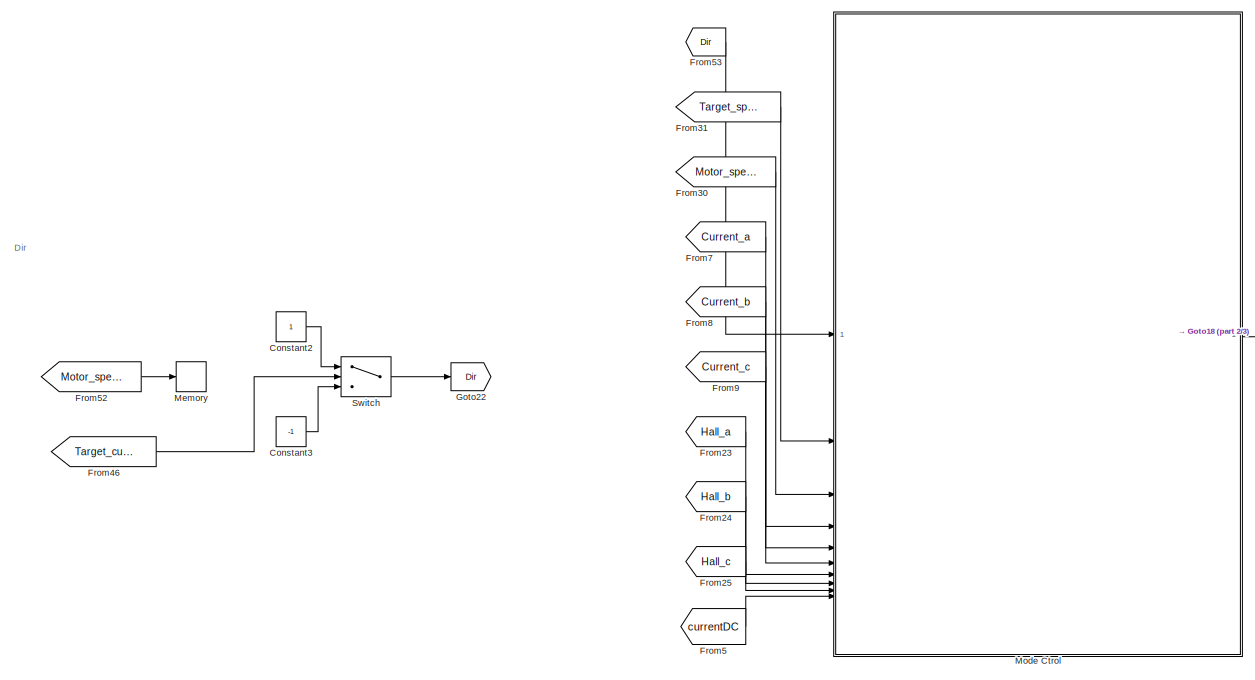
[diagram: root canvas - part 1/3, top left region]
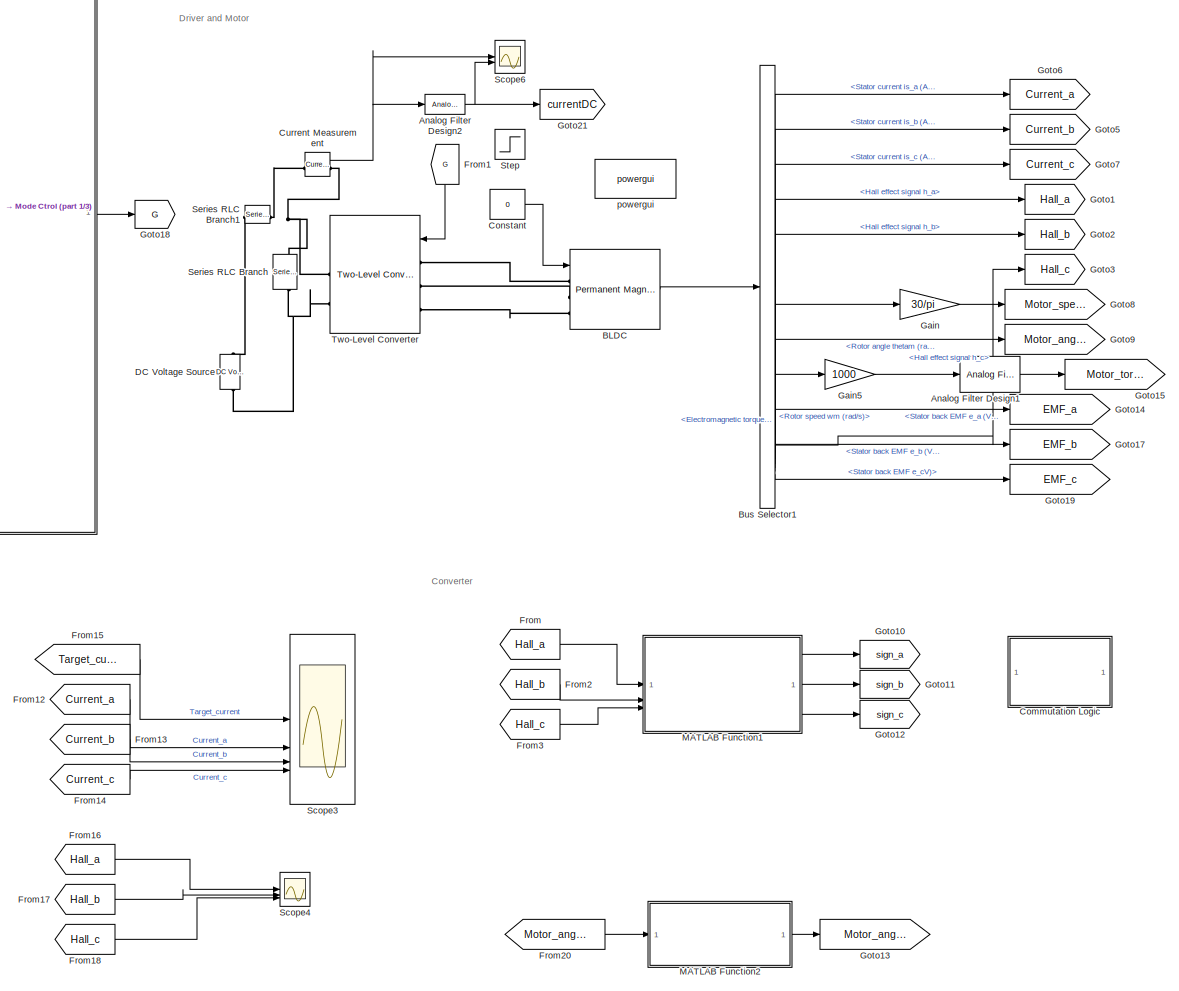
[diagram: root canvas - part 2/3, right side, full height]
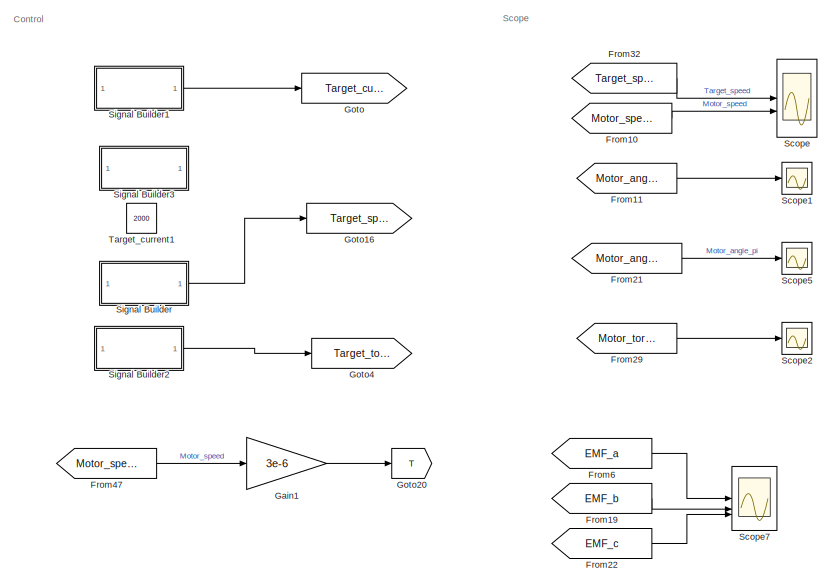
[diagram: root canvas - part 3/3, bottom left region]
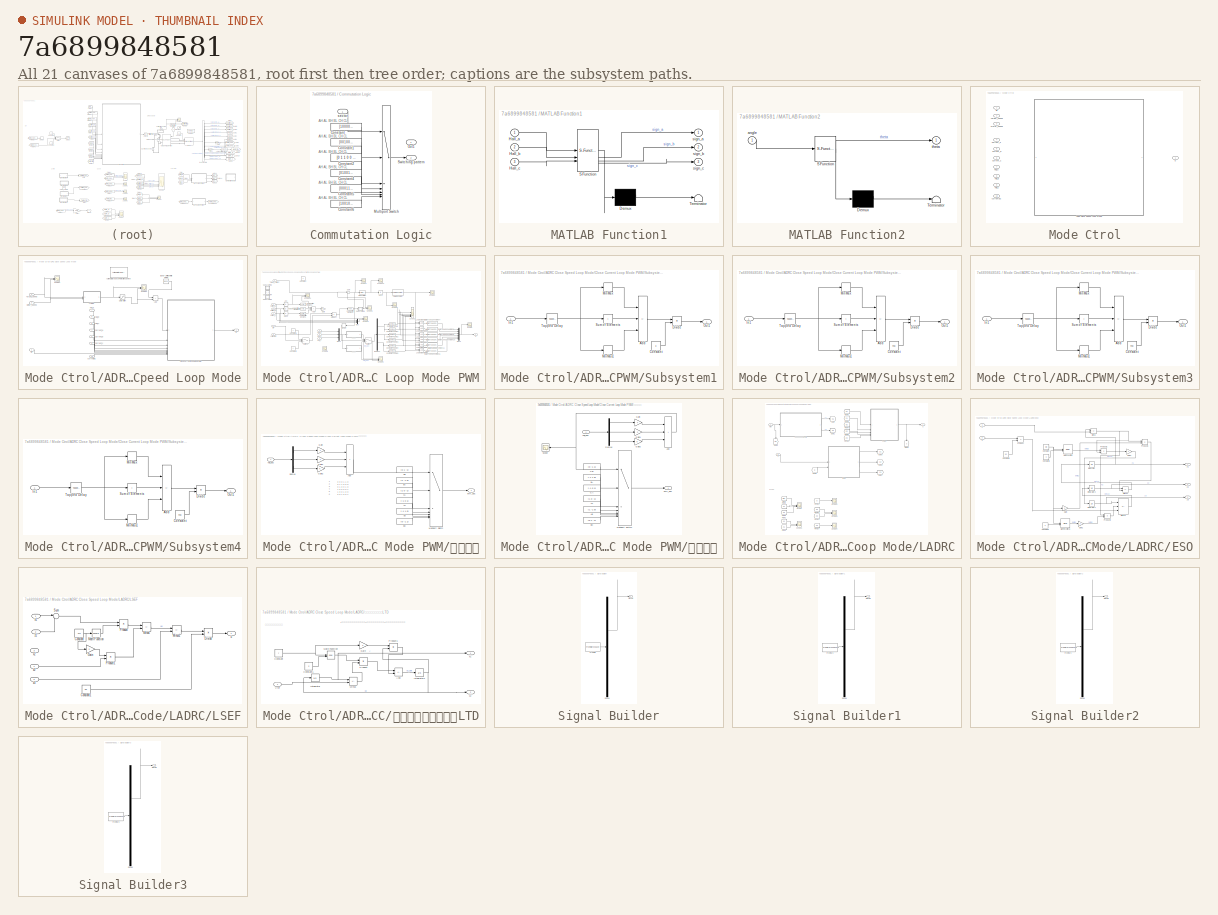
[diagram: thumbnail index - all 21 canvases of the model, root first then tree order]
MODEL slx_7a6899848581
KIND model
CONFIG AbsTol = auto
CONFIG EnableMultiTasking = off
CONFIG FixedStep = 1e-6
CONFIG MaxStep = auto
CONFIG MinStep = auto
CONFIG RelTol = 1e-3
CONFIG SampleTimeConstraint = Unconstrained
CONFIG SolverName = ode4
CONFIG StartTime = 0.0
CONFIG StopTime = 2
WORKSPACE source: mxarray member
WORKSPACE Ctrol_Mode = 1
WORKSPACE Current_Control_Mode = 2
WORKSPACE Current_PID_Upper_Limit = 1
WORKSPACE PWM_Period = 0.0001
WORKSPACE Speed_I = 10
WORKSPACE Speed_P = 10
WORKSPACE Speed_PID_Upper_Limit = 0.02
WORKSPACE Ts_time = 1e-06
WORKSPACE Wc = 1000
WORKSPACE Wo = 4000
WORKSPACE b0 = 300
WORKSPACE current_I = 1
WORKSPACE current_P = 100
WORKSPACE r = 80
BLOCK [Reference] Analog Filter Design1  REF=dsparch4/Analog
Filter Design
  SourceBlock = dsparch4/Analog\nFilter Design
  SourceType = Analog Filter Design
BLOCK [Reference] Analog Filter Design2  REF=dsparch4/Analog
Filter Design
  SourceBlock = dsparch4/Analog\nFilter Design
  SourceType = Analog Filter Design
BLOCK [Reference] BLDC  REF=spsPermanentMagnetSynchronousMachineLib/Permanent Magnet
Synchronous Machine
  SourceBlock = spsPermanentMagnetSynchronousMachineLib/Permanent Magnet\nSynchronous Machine
  SourceType = Permanent Magnet Synchronous Machine
BLOCK [BusSelector] Bus Selector1
  NameLocation = top
  OutputSignals = Stator current is_a (A),Stator current is_b (A),Stator current is_c (A),Hall effect signal h_a,Hall effect signal h_b,Hall effect signal h_c,Rotor speed wm (rad/s),Rotor angle thetam (rad),Electromagnetic torque Te (N*m),Stator back EMF e_a (V),Stator back EMF e_b (V),Stator back EMF e_cV)
BLOCK [SubSystem] Commutation Logic
  Commented = on
  ShowPortLabels = none
BLOCK [Outport] Commutation Logic/  Switching pattern
  Port = 2
  VectorParamsAs1DForOutWhenUnconnected = off
BLOCK [Constant] Commutation Logic/Constant
  Value = [1 0 0 0 0 1]
BLOCK [Constant] Commutation Logic/Constant1
  Value = [0 0 1 0 0 1]
BLOCK [Constant] Commutation Logic/Constant2
  Value = [0 1 1 0 0 0]
BLOCK [Constant] Commutation Logic/Constant4
  Value = [0 1 0 0 1 0]
BLOCK [Constant] Commutation Logic/Constant5
  Value = [0 0 0 1 1 0]
BLOCK [Constant] Commutation Logic/Constant6
  Value = [1 0 0 1 0 0]
BLOCK [MultiPortSwitch] Commutation Logic/Multiport Switch
  InputSameDT = off
  Inputs = 6
  SaturateOnIntegerOverflow = off
BLOCK [Outport] Commutation Logic/Out1
BLOCK [Inport] Commutation Logic/sector
  NameLocation = top
BLOCK [Constant] Constant
  Value = 0
BLOCK [Constant] Constant2
BLOCK [Constant] Constant3
  Value = -1
BLOCK [Reference] Current Measurement  REF=spsCurrentMeasurementLib/Current Measurement
  LibrarySourceBlock = sps_lib/Sensors and Measurements/Current Measurement
  SourceBlock = spsCurrentMeasurementLib/Current Measurement
  SourceType = Current Measurement
  UserDataPersistent = on
BLOCK [Reference] DC Voltage Source  REF=spsDCVoltageSourceLib/DC Voltage Source
  SourceBlock = spsDCVoltageSourceLib/DC Voltage Source
  SourceType = DC Voltage Source
BLOCK [From] From
  GotoTag = Hall_a
BLOCK [From] From1
  GotoTag = G
  NameLocation = left
BLOCK [From] From10
  GotoTag = Motor_speed
BLOCK [From] From11
  Commented = on
  GotoTag = Motor_angle
BLOCK [From] From12
  GotoTag = Current_a
BLOCK [From] From13
  GotoTag = Current_b
BLOCK [From] From14
  GotoTag = Current_c
BLOCK [From] From15
  GotoTag = Target_current
BLOCK [From] From16
  GotoTag = Hall_a
BLOCK [From] From17
  GotoTag = Hall_b
BLOCK [From] From18
  GotoTag = Hall_c
BLOCK [From] From19
  GotoTag = EMF_b
BLOCK [From] From2
  GotoTag = Hall_b
BLOCK [From] From20
  GotoTag = Motor_angle
BLOCK [From] From21
  GotoTag = Motor_angle_pi
BLOCK [From] From22
  GotoTag = EMF_c
BLOCK [From] From23
  GotoTag = Hall_a
BLOCK [From] From24
  GotoTag = Hall_b
BLOCK [From] From25
  GotoTag = Hall_c
BLOCK [From] From29
  GotoTag = Motor_torque
BLOCK [From] From3
  GotoTag = Hall_c
BLOCK [From] From30
  GotoTag = Motor_speed
BLOCK [From] From31
  GotoTag = Target_speed
BLOCK [From] From32
  GotoTag = Target_speed
BLOCK [From] From46
  GotoTag = Target_current
BLOCK [From] From47
  Commented = on
  GotoTag = Motor_speed
BLOCK [From] From5
  GotoTag = currentDC
BLOCK [From] From52
  GotoTag = Motor_speed
BLOCK [From] From53
  GotoTag = Dir
BLOCK [From] From6
  GotoTag = EMF_a
BLOCK [From] From7
  GotoTag = Current_a
BLOCK [From] From8
  GotoTag = Current_b
BLOCK [From] From9
  GotoTag = Current_c
BLOCK [Gain] Gain
  Gain = 30/pi
BLOCK [Gain] Gain1
  Commented = on
  Gain = 3e-6
BLOCK [Gain] Gain5
  Gain = 1000
BLOCK [Goto] Goto
  GotoTag = Target_current
BLOCK [Goto] Goto1
  GotoTag = Hall_a
BLOCK [Goto] Goto10
  GotoTag = sign_a
  NameLocation = top
BLOCK [Goto] Goto11
  GotoTag = sign_b
  NameLocation = top
BLOCK [Goto] Goto12
  GotoTag = sign_c
  NameLocation = top
BLOCK [Goto] Goto13
  GotoTag = Motor_angle_pi
BLOCK [Goto] Goto14
  GotoTag = EMF_a
BLOCK [Goto] Goto15
  GotoTag = Motor_torque
BLOCK [Goto] Goto16
  GotoTag = Target_speed
BLOCK [Goto] Goto17
  GotoTag = EMF_b
BLOCK [Goto] Goto18
  GotoTag = G
  NameLocation = top
BLOCK [Goto] Goto19
  GotoTag = EMF_c
BLOCK [Goto] Goto2
  GotoTag = Hall_b
BLOCK [Goto] Goto20
  Commented = on
  GotoTag = T
BLOCK [Goto] Goto21
  GotoTag = currentDC
BLOCK [Goto] Goto22
  GotoTag = Dir
  NameLocation = top
BLOCK [Goto] Goto3
  GotoTag = Hall_c
BLOCK [Goto] Goto4
  GotoTag = Target_torque
BLOCK [Goto] Goto5
  GotoTag = Current_b
BLOCK [Goto] Goto6
  GotoTag = Current_a
BLOCK [Goto] Goto7
  GotoTag = Current_c
BLOCK [Goto] Goto8
  GotoTag = Motor_speed
BLOCK [Goto] Goto9
  GotoTag = Motor_angle
BLOCK [SubSystem] MATLAB Function1
  ErrorFcn = Stateflow.Translate.translate
  LibrarySourceBlock = simulink/User-Defined\nFunctions/MATLAB Function
  PermitHierarchicalResolution = ExplicitOnly
  SFBlockType = MATLAB Function
  TreatAsAtomicUnit = on
BLOCK [Demux] MATLAB Function1/ Demux 
  Outputs = 1
BLOCK [S-Function] MATLAB Function1/ SFunction 
  EnableBusSupport = on
  FunctionName = sf_sfun
  PortCounts = [3 4]
  SFcnIsStateOwnerBlock = off
  SFunctionDeploymentMode = off
  Tag = Stateflow S-Function 2
BLOCK [Terminator] MATLAB Function1/ Terminator 
BLOCK [Inport] MATLAB Function1/Hall_a
BLOCK [Inport] MATLAB Function1/Hall_b
  Port = 2
BLOCK [Inport] MATLAB Function1/Hall_c
  Port = 3
BLOCK [Outport] MATLAB Function1/sign_a
BLOCK [Outport] MATLAB Function1/sign_b
  Port = 2
BLOCK [Outport] MATLAB Function1/sign_c
  Port = 3
BLOCK [SubSystem] MATLAB Function2
  ErrorFcn = Stateflow.Translate.translate
  PermitHierarchicalResolution = ExplicitOnly
  SFBlockType = MATLAB Function
  TreatAsAtomicUnit = on
BLOCK [Demux] MATLAB Function2/ Demux 
  Outputs = 1
BLOCK [S-Function] MATLAB Function2/ SFunction 
  EnableBusSupport = on
  FunctionName = sf_sfun
  PortCounts = [1 2]
  SFcnIsStateOwnerBlock = off
  SFunctionDeploymentMode = off
  Tag = Stateflow S-Function 1
BLOCK [Terminator] MATLAB Function2/ Terminator 
BLOCK [Inport] MATLAB Function2/angle
BLOCK [Outport] MATLAB Function2/theta
BLOCK [Memory] Memory
  Commented = through
BLOCK [SubSystem] Mode Ctrol
  Variant = on
BLOCK [SubSystem] Mode Ctrol/ADRC Close Speed Loop Mode
  TreatAsAtomicUnit = on
  VariantControl = Ctrol_Mode==1
BLOCK [Reference] Mode Ctrol/ADRC Close Speed Loop Mode/Active Disturbance Rejection Control  REF=slctrlblks/Active Disturbance Rejection Control
  SourceBlock = slctrlblks/Active Disturbance Rejection Control
  SourceType = Active Disturbance Rejection Control (ADRC)
BLOCK [Sum] Mode Ctrol/ADRC Close Speed Loop Mode/Add
  IconShape = rectangular
BLOCK [Reference] Mode Ctrol/ADRC Close Speed Loop Mode/Band-Limited White Noise  REF=simulink/Sources/Band-Limited
White Noise
  Commented = on
  SourceBlock = simulink/Sources/Band-Limited\nWhite Noise
  SourceType = Band-Limited White Noise.
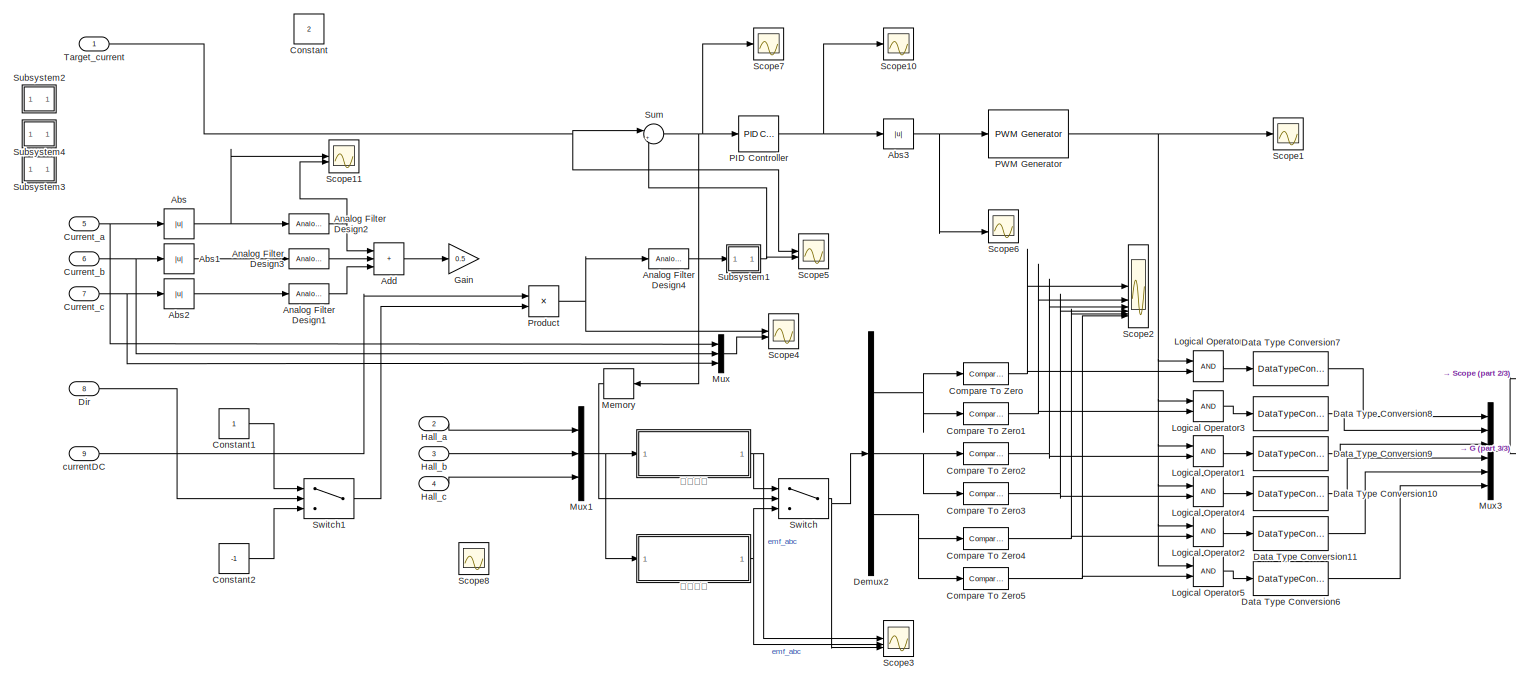
[diagram: Mode Ctrol/ADRC Close Speed Loop Mode/Close Current Loop Mode PWM - part 1/3, most of the canvas]
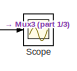
[diagram: Mode Ctrol/ADRC Close Speed Loop Mode/Close Current Loop Mode PWM - part 2/3, middle right region]
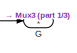
[diagram: Mode Ctrol/ADRC Close Speed Loop Mode/Close Current Loop Mode PWM - part 3/3, bottom right region]
BLOCK [SubSystem] Mode Ctrol/ADRC Close Speed Loop Mode/Close Current Loop Mode PWM
  TreatAsAtomicUnit = on
  VariantControl = Ctrol_Mode==5
BLOCK [Abs] Mode Ctrol/ADRC Close Speed Loop Mode/Close Current Loop Mode PWM/Abs
  SaturateOnIntegerOverflow = off
BLOCK [Abs] Mode Ctrol/ADRC Close Speed Loop Mode/Close Current Loop Mode PWM/Abs1
  SaturateOnIntegerOverflow = off
BLOCK [Abs] Mode Ctrol/ADRC Close Speed Loop Mode/Close Current Loop Mode PWM/Abs2
  SaturateOnIntegerOverflow = off
BLOCK [Abs] Mode Ctrol/ADRC Close Speed Loop Mode/Close Current Loop Mode PWM/Abs3
  SaturateOnIntegerOverflow = off
BLOCK [Sum] Mode Ctrol/ADRC Close Speed Loop Mode/Close Current Loop Mode PWM/Add
  IconShape = rectangular
  Inputs = +++
BLOCK [Reference] Mode Ctrol/ADRC Close Speed Loop Mode/Close Current Loop Mode PWM/Analog Filter Design1  REF=dsparch4/Analog
Filter Design
  Commented = on
  SourceBlock = dsparch4/Analog\nFilter Design
  SourceType = Analog Filter Design
BLOCK [Reference] Mode Ctrol/ADRC Close Speed Loop Mode/Close Current Loop Mode PWM/Analog Filter Design2  REF=dsparch4/Analog
Filter Design
  Commented = on
  SourceBlock = dsparch4/Analog\nFilter Design
  SourceType = Analog Filter Design
BLOCK [Reference] Mode Ctrol/ADRC Close Speed Loop Mode/Close Current Loop Mode PWM/Analog Filter Design3  REF=dsparch4/Analog
Filter Design
  Commented = on
  SourceBlock = dsparch4/Analog\nFilter Design
  SourceType = Analog Filter Design
BLOCK [Reference] Mode Ctrol/ADRC Close Speed Loop Mode/Close Current Loop Mode PWM/Analog Filter Design4  REF=dsparch4/Analog
Filter Design
  Commented = through
  SourceBlock = dsparch4/Analog\nFilter Design
  SourceType = Analog Filter Design
BLOCK [Reference] Mode Ctrol/ADRC Close Speed Loop Mode/Close Current Loop Mode PWM/Compare To Zero  REF=simulink/Logic and Bit
Operations/Compare
To Zero
  SourceBlock = simulink/Logic and Bit\nOperations/Compare\nTo Zero
  SourceType = Compare To Zero
BLOCK [Reference] Mode Ctrol/ADRC Close Speed Loop Mode/Close Current Loop Mode PWM/Compare To Zero1  REF=simulink/Logic and Bit
Operations/Compare
To Zero
  SourceBlock = simulink/Logic and Bit\nOperations/Compare\nTo Zero
  SourceType = Compare To Zero
BLOCK [Reference] Mode Ctrol/ADRC Close Speed Loop Mode/Close Current Loop Mode PWM/Compare To Zero2  REF=simulink/Logic and Bit
Operations/Compare
To Zero
  SourceBlock = simulink/Logic and Bit\nOperations/Compare\nTo Zero
  SourceType = Compare To Zero
BLOCK [Reference] Mode Ctrol/ADRC Close Speed Loop Mode/Close Current Loop Mode PWM/Compare To Zero3  REF=simulink/Logic and Bit
Operations/Compare
To Zero
  SourceBlock = simulink/Logic and Bit\nOperations/Compare\nTo Zero
  SourceType = Compare To Zero
BLOCK [Reference] Mode Ctrol/ADRC Close Speed Loop Mode/Close Current Loop Mode PWM/Compare To Zero4  REF=simulink/Logic and Bit
Operations/Compare
To Zero
  SourceBlock = simulink/Logic and Bit\nOperations/Compare\nTo Zero
  SourceType = Compare To Zero
BLOCK [Reference] Mode Ctrol/ADRC Close Speed Loop Mode/Close Current Loop Mode PWM/Compare To Zero5  REF=simulink/Logic and Bit
Operations/Compare
To Zero
  SourceBlock = simulink/Logic and Bit\nOperations/Compare\nTo Zero
  SourceType = Compare To Zero
BLOCK [Constant] Mode Ctrol/ADRC Close Speed Loop Mode/Close Current Loop Mode PWM/Constant
  Value = 2
BLOCK [Constant] Mode Ctrol/ADRC Close Speed Loop Mode/Close Current Loop Mode PWM/Constant1
BLOCK [Constant] Mode Ctrol/ADRC Close Speed Loop Mode/Close Current Loop Mode PWM/Constant2
  Value = -1
BLOCK [Inport] Mode Ctrol/ADRC Close Speed Loop Mode/Close Current Loop Mode PWM/Current_a
  Port = 5
BLOCK [Inport] Mode Ctrol/ADRC Close Speed Loop Mode/Close Current Loop Mode PWM/Current_b
  Port = 6
BLOCK [Inport] Mode Ctrol/ADRC Close Speed Loop Mode/Close Current Loop Mode PWM/Current_c
  Port = 7
BLOCK [DataTypeConversion] Mode Ctrol/ADRC Close Speed Loop Mode/Close Current Loop Mode PWM/Data Type Conversion10
  RndMeth = Floor
  SaturateOnIntegerOverflow = off
BLOCK [DataTypeConversion] Mode Ctrol/ADRC Close Speed Loop Mode/Close Current Loop Mode PWM/Data Type Conversion11
  RndMeth = Floor
  SaturateOnIntegerOverflow = off
BLOCK [DataTypeConversion] Mode Ctrol/ADRC Close Speed Loop Mode/Close Current Loop Mode PWM/Data Type Conversion6
  RndMeth = Floor
  SaturateOnIntegerOverflow = off
BLOCK [DataTypeConversion] Mode Ctrol/ADRC Close Speed Loop Mode/Close Current Loop Mode PWM/Data Type Conversion7
  RndMeth = Floor
  SaturateOnIntegerOverflow = off
BLOCK [DataTypeConversion] Mode Ctrol/ADRC Close Speed Loop Mode/Close Current Loop Mode PWM/Data Type Conversion8
  RndMeth = Floor
  SaturateOnIntegerOverflow = off
BLOCK [DataTypeConversion] Mode Ctrol/ADRC Close Speed Loop Mode/Close Current Loop Mode PWM/Data Type Conversion9
  RndMeth = Floor
  SaturateOnIntegerOverflow = off
BLOCK [Demux] Mode Ctrol/ADRC Close Speed Loop Mode/Close Current Loop Mode PWM/Demux2
  Outputs = 3
BLOCK [Inport] Mode Ctrol/ADRC Close Speed Loop Mode/Close Current Loop Mode PWM/Dir
  Port = 8
BLOCK [Outport] Mode Ctrol/ADRC Close Speed Loop Mode/Close Current Loop Mode PWM/G
BLOCK [Gain] Mode Ctrol/ADRC Close Speed Loop Mode/Close Current Loop Mode PWM/Gain
  Gain = 0.5
BLOCK [Inport] Mode Ctrol/ADRC Close Speed Loop Mode/Close Current Loop Mode PWM/Hall_a
  Port = 2
BLOCK [Inport] Mode Ctrol/ADRC Close Speed Loop Mode/Close Current Loop Mode PWM/Hall_b
  Port = 3
BLOCK [Inport] Mode Ctrol/ADRC Close Speed Loop Mode/Close Current Loop Mode PWM/Hall_c
  Port = 4
BLOCK [Logic] Mode Ctrol/ADRC Close Speed Loop Mode/Close Current Loop Mode PWM/Logical Operator
  AllPortsSameDT = off
  OutDataTypeStr = boolean
BLOCK [Logic] Mode Ctrol/ADRC Close Speed Loop Mode/Close Current Loop Mode PWM/Logical Operator1
  AllPortsSameDT = off
  OutDataTypeStr = boolean
BLOCK [Logic] Mode Ctrol/ADRC Close Speed Loop Mode/Close Current Loop Mode PWM/Logical Operator2
  AllPortsSameDT = off
  OutDataTypeStr = boolean
BLOCK [Logic] Mode Ctrol/ADRC Close Speed Loop Mode/Close Current Loop Mode PWM/Logical Operator3
  AllPortsSameDT = off
  OutDataTypeStr = boolean
BLOCK [Logic] Mode Ctrol/ADRC Close Speed Loop Mode/Close Current Loop Mode PWM/Logical Operator4
  AllPortsSameDT = off
  OutDataTypeStr = boolean
BLOCK [Logic] Mode Ctrol/ADRC Close Speed Loop Mode/Close Current Loop Mode PWM/Logical Operator5
  AllPortsSameDT = off
  OutDataTypeStr = boolean
BLOCK [Memory] Mode Ctrol/ADRC Close Speed Loop Mode/Close Current Loop Mode PWM/Memory
  NameLocation = top
BLOCK [Mux] Mode Ctrol/ADRC Close Speed Loop Mode/Close Current Loop Mode PWM/Mux
  DisplayOption = bar
  Inputs = 3
BLOCK [Mux] Mode Ctrol/ADRC Close Speed Loop Mode/Close Current Loop Mode PWM/Mux1
  DisplayOption = bar
  Inputs = 3
BLOCK [Mux] Mode Ctrol/ADRC Close Speed Loop Mode/Close Current Loop Mode PWM/Mux3
  DisplayOption = bar
  Inputs = 6
BLOCK [Reference] Mode Ctrol/ADRC Close Speed Loop Mode/Close Current Loop Mode PWM/PID Controller  REF=slpidlib/PID Controller
  LibrarySourceBlock = simulink/Continuous/PID Controller
  SourceBlock = slpidlib/PID Controller
  SourceType = PID 1dof
BLOCK [Reference] Mode Ctrol/ADRC Close Speed Loop Mode/Close Current Loop Mode PWM/PWM Generator  REF=eePwmGenerator/PWM Generator
  LibrarySourceBlock = ee_sl_lib/Pulse Width\nModulation/PWM Generator
  SourceBlock = eePwmGenerator/PWM Generator
  SourceType = PWM Generator
BLOCK [Product] Mode Ctrol/ADRC Close Speed Loop Mode/Close Current Loop Mode PWM/Product
BLOCK [Scope] Mode Ctrol/ADRC Close Speed Loop Mode/Close Current Loop Mode PWM/Scope
  Floating = off
  NumInputPorts = 1
  ScopeSpecificationString = Simulink.scopes.TimeScopeBlockCfg('CurrentConfiguration', extmgr.ConfigurationSet(extmgr.Configuration('Core','General UI',true),extmgr.Configuration('Core','Source UI',true),extmgr.Configuration('Sources','WiredSimulink',true,'DataLoggingVariableName','ScopeData12'),extmgr.Configuration('Visuals','Time Domain',true,'SerializedDisplays',{struct('MinYLimReal','-0.125','MaxYLimReal','1.125','YLabelR...<+1698ch>
BLOCK [Scope] Mode Ctrol/ADRC Close Speed Loop Mode/Close Current Loop Mode PWM/Scope1
  Floating = off
  NumInputPorts = 1
  ScopeSpecificationString = Simulink.scopes.TimeScopeBlockCfg('CurrentConfiguration', extmgr.ConfigurationSet(extmgr.Configuration('Core','General UI',true),extmgr.Configuration('Core','Source UI',true),extmgr.Configuration('Sources','WiredSimulink',true,'DataLoggingVariableName','ScopeData13'),extmgr.Configuration('Visuals','Time Domain',true,'SerializedDisplays',{struct('MinYLimReal','0.9','MaxYLimReal','1.1','YLabelReal',...<+1412ch>
BLOCK [Scope] Mode Ctrol/ADRC Close Speed Loop Mode/Close Current Loop Mode PWM/Scope10
  Floating = off
  NumInputPorts = 1
  ScopeSpecificationString = Simulink.scopes.TimeScopeBlockCfg('CurrentConfiguration', extmgr.ConfigurationSet(extmgr.Configuration('Core','General UI',true),extmgr.Configuration('Core','Source UI',true),extmgr.Configuration('Sources','WiredSimulink',true,'DataLoggingVariableName','ScopeData14'),extmgr.Configuration('Visuals','Time Domain',true,'SerializedDisplays',{struct('MinYLimReal','0.9','MaxYLimReal','1.1','YLabelReal',...<+1412ch>
BLOCK [Scope] Mode Ctrol/ADRC Close Speed Loop Mode/Close Current Loop Mode PWM/Scope11
  Floating = off
  NumInputPorts = 2
  ScopeSpecificationString = Simulink.scopes.TimeScopeBlockCfg('CurrentConfiguration', extmgr.ConfigurationSet(extmgr.Configuration('Core','General UI',true),extmgr.Configuration('Core','Source UI',true),extmgr.Configuration('Sources','WiredSimulink',true,'DataLoggingVariableName','ScopeData15'),extmgr.Configuration('Visuals','Time Domain',true,'SerializedDisplays',{struct('MinYLimReal','-2.68509','MaxYLimReal','24.16584','YL...<+2147ch>
BLOCK [Scope] Mode Ctrol/ADRC Close Speed Loop Mode/Close Current Loop Mode PWM/Scope2
  Floating = off
  NumInputPorts = 6
  ScopeSpecificationString = Simulink.scopes.TimeScopeBlockCfg('CurrentConfiguration', extmgr.ConfigurationSet(extmgr.Configuration('Core','General UI',true),extmgr.Configuration('Core','Source UI',true),extmgr.Configuration('Sources','WiredSimulink',true,'DataLoggingVariableName','ScopeData16'),extmgr.Configuration('Visuals','Time Domain',true,'SerializedDisplays',{struct('MinYLimReal','-0.04789','MaxYLimReal','1.03549','YLa...<+3849ch>
BLOCK [Scope] Mode Ctrol/ADRC Close Speed Loop Mode/Close Current Loop Mode PWM/Scope3
  Floating = off
  NumInputPorts = 3
  ScopeSpecificationString = Simulink.scopes.TimeScopeBlockCfg('CurrentConfiguration', extmgr.ConfigurationSet(extmgr.Configuration('Core','General UI',true),extmgr.Configuration('Core','Source UI',true),extmgr.Configuration('Sources','WiredSimulink',true,'DataLoggingVariableName','ScopeData17'),extmgr.Configuration('Visuals','Time Domain',true,'SerializedDisplays',{struct('MinYLimReal','-1.25','MaxYLimReal','1.25','YLabelRea...<+3162ch>
BLOCK [Scope] Mode Ctrol/ADRC Close Speed Loop Mode/Close Current Loop Mode PWM/Scope4
  Floating = off
  NumInputPorts = 2
  ScopeSpecificationString = Simulink.scopes.TimeScopeBlockCfg('CurrentConfiguration', extmgr.ConfigurationSet(extmgr.Configuration('Core','General UI',true),extmgr.Configuration('Core','Source UI',true),extmgr.Configuration('Sources','WiredSimulink',true,'DataLoggingVariableName','ScopeData18'),extmgr.Configuration('Visuals','Time Domain',true,'SerializedDisplays',{struct('MinYLimReal','-0.000047','MaxYLimReal','0.000005','Y...<+1599ch>
BLOCK [Scope] Mode Ctrol/ADRC Close Speed Loop Mode/Close Current Loop Mode PWM/Scope5
  Floating = off
  NumInputPorts = 2
  ScopeSpecificationString = Simulink.scopes.TimeScopeBlockCfg('CurrentConfiguration', extmgr.ConfigurationSet(extmgr.Configuration('Core','General UI',true,'FigureColor',[1 1 1]),extmgr.Configuration('Core','Source UI',true),extmgr.Configuration('Sources','WiredSimulink',true,'DataLoggingVariableName','ScopeData19'),extmgr.Configuration('Visuals','Time Domain',true,'SerializedDisplays',{struct('MinYLimReal','1.00000','MaxYLi...<+2539ch>
BLOCK [Scope] Mode Ctrol/ADRC Close Speed Loop Mode/Close Current Loop Mode PWM/Scope6
  Floating = off
  NumInputPorts = 2
  ScopeSpecificationString = Simulink.scopes.TimeScopeBlockCfg('CurrentConfiguration', extmgr.ConfigurationSet(extmgr.Configuration('Core','General UI',true),extmgr.Configuration('Core','Source UI',true),extmgr.Configuration('Sources','WiredSimulink',true,'DataLoggingVariableName','ScopeData20'),extmgr.Configuration('Visuals','Time Domain',true,'SerializedDisplays',{struct('MinYLimReal','-2.86193','MaxYLimReal','7.05201','YLa...<+1453ch>
BLOCK [Scope] Mode Ctrol/ADRC Close Speed Loop Mode/Close Current Loop Mode PWM/Scope7
  Floating = off
  NumInputPorts = 1
  ScopeSpecificationString = Simulink.scopes.TimeScopeBlockCfg('CurrentConfiguration', extmgr.ConfigurationSet(extmgr.Configuration('Core','General UI',true),extmgr.Configuration('Core','Source UI',true),extmgr.Configuration('Sources','WiredSimulink',true,'DataLoggingVariableName','ScopeData21'),extmgr.Configuration('Visuals','Time Domain',true,'SerializedDisplays',{struct('MinYLimReal','1.999953','MaxYLimReal','2.000005','YL...<+1442ch>
BLOCK [Scope] Mode Ctrol/ADRC Close Speed Loop Mode/Close Current Loop Mode PWM/Scope8
  Floating = off
  NumInputPorts = 1
  ScopeSpecificationString = Simulink.scopes.TimeScopeBlockCfg('CurrentConfiguration', extmgr.ConfigurationSet(extmgr.Configuration('Core','General UI',true),extmgr.Configuration('Core','Source UI',true),extmgr.Configuration('Sources','WiredSimulink',true,'DataLoggingVariableName','ScopeData22'),extmgr.Configuration('Visuals','Time Domain',true,'SerializedDisplays',{struct('MinYLimReal','1000.00000','MaxYLimReal','3000.00000'...<+1501ch>
BLOCK [SubSystem] Mode Ctrol/ADRC Close Speed Loop Mode/Close Current Loop Mode PWM/Subsystem1
  Commented = through
BLOCK [Sum] Mode Ctrol/ADRC Close Speed Loop Mode/Close Current Loop Mode PWM/Subsystem1/Add
  IconShape = rectangular
  Inputs = -+-
BLOCK [Constant] Mode Ctrol/ADRC Close Speed Loop Mode/Close Current Loop Mode PWM/Subsystem1/Constant
  Value = 8
BLOCK [Product] Mode Ctrol/ADRC Close Speed Loop Mode/Close Current Loop Mode PWM/Subsystem1/Divide
  Inputs = */
BLOCK [Inport] Mode Ctrol/ADRC Close Speed Loop Mode/Close Current Loop Mode PWM/Subsystem1/In1
BLOCK [MinMax] Mode Ctrol/ADRC Close Speed Loop Mode/Close Current Loop Mode PWM/Subsystem1/MinMax
  Function = max
BLOCK [MinMax] Mode Ctrol/ADRC Close Speed Loop Mode/Close Current Loop Mode PWM/Subsystem1/MinMax1
BLOCK [Outport] Mode Ctrol/ADRC Close Speed Loop Mode/Close Current Loop Mode PWM/Subsystem1/Out1
BLOCK [Sum] Mode Ctrol/ADRC Close Speed Loop Mode/Close Current Loop Mode PWM/Subsystem1/Sum of Elements
  IconShape = rectangular
  Inputs = +
BLOCK [Reference] Mode Ctrol/ADRC Close Speed Loop Mode/Close Current Loop Mode PWM/Subsystem1/Tapped Delay  REF=simulink/Discrete/Tapped Delay
  SourceBlock = simulink/Discrete/Tapped Delay
  SourceType = Tapped Delay Line
BLOCK [SubSystem] Mode Ctrol/ADRC Close Speed Loop Mode/Close Current Loop Mode PWM/Subsystem2
BLOCK [Sum] Mode Ctrol/ADRC Close Speed Loop Mode/Close Current Loop Mode PWM/Subsystem2/Add
  IconShape = rectangular
  Inputs = -+-
BLOCK [Constant] Mode Ctrol/ADRC Close Speed Loop Mode/Close Current Loop Mode PWM/Subsystem2/Constant
  Value = 998
BLOCK [Product] Mode Ctrol/ADRC Close Speed Loop Mode/Close Current Loop Mode PWM/Subsystem2/Divide
  Inputs = */
BLOCK [Inport] Mode Ctrol/ADRC Close Speed Loop Mode/Close Current Loop Mode PWM/Subsystem2/In1
BLOCK [MinMax] Mode Ctrol/ADRC Close Speed Loop Mode/Close Current Loop Mode PWM/Subsystem2/MinMax
  Function = max
BLOCK [MinMax] Mode Ctrol/ADRC Close Speed Loop Mode/Close Current Loop Mode PWM/Subsystem2/MinMax1
BLOCK [Outport] Mode Ctrol/ADRC Close Speed Loop Mode/Close Current Loop Mode PWM/Subsystem2/Out1
BLOCK [Sum] Mode Ctrol/ADRC Close Speed Loop Mode/Close Current Loop Mode PWM/Subsystem2/Sum of Elements
  IconShape = rectangular
  Inputs = +
BLOCK [Reference] Mode Ctrol/ADRC Close Speed Loop Mode/Close Current Loop Mode PWM/Subsystem2/Tapped Delay  REF=simulink/Discrete/Tapped Delay
  SourceBlock = simulink/Discrete/Tapped Delay
  SourceType = Tapped Delay Line
BLOCK [SubSystem] Mode Ctrol/ADRC Close Speed Loop Mode/Close Current Loop Mode PWM/Subsystem3
BLOCK [Sum] Mode Ctrol/ADRC Close Speed Loop Mode/Close Current Loop Mode PWM/Subsystem3/Add
  IconShape = rectangular
  Inputs = -+-
BLOCK [Constant] Mode Ctrol/ADRC Close Speed Loop Mode/Close Current Loop Mode PWM/Subsystem3/Constant
  Value = 998
BLOCK [Product] Mode Ctrol/ADRC Close Speed Loop Mode/Close Current Loop Mode PWM/Subsystem3/Divide
  Inputs = */
BLOCK [Inport] Mode Ctrol/ADRC Close Speed Loop Mode/Close Current Loop Mode PWM/Subsystem3/In1
BLOCK [MinMax] Mode Ctrol/ADRC Close Speed Loop Mode/Close Current Loop Mode PWM/Subsystem3/MinMax
  Function = max
BLOCK [MinMax] Mode Ctrol/ADRC Close Speed Loop Mode/Close Current Loop Mode PWM/Subsystem3/MinMax1
BLOCK [Outport] Mode Ctrol/ADRC Close Speed Loop Mode/Close Current Loop Mode PWM/Subsystem3/Out1
BLOCK [Sum] Mode Ctrol/ADRC Close Speed Loop Mode/Close Current Loop Mode PWM/Subsystem3/Sum of Elements
  IconShape = rectangular
  Inputs = +
BLOCK [Reference] Mode Ctrol/ADRC Close Speed Loop Mode/Close Current Loop Mode PWM/Subsystem3/Tapped Delay  REF=simulink/Discrete/Tapped Delay
  SourceBlock = simulink/Discrete/Tapped Delay
  SourceType = Tapped Delay Line
BLOCK [SubSystem] Mode Ctrol/ADRC Close Speed Loop Mode/Close Current Loop Mode PWM/Subsystem4
BLOCK [Sum] Mode Ctrol/ADRC Close Speed Loop Mode/Close Current Loop Mode PWM/Subsystem4/Add
  IconShape = rectangular
  Inputs = -+-
BLOCK [Constant] Mode Ctrol/ADRC Close Speed Loop Mode/Close Current Loop Mode PWM/Subsystem4/Constant
  Value = 998
BLOCK [Product] Mode Ctrol/ADRC Close Speed Loop Mode/Close Current Loop Mode PWM/Subsystem4/Divide
  Inputs = */
BLOCK [Inport] Mode Ctrol/ADRC Close Speed Loop Mode/Close Current Loop Mode PWM/Subsystem4/In1
BLOCK [MinMax] Mode Ctrol/ADRC Close Speed Loop Mode/Close Current Loop Mode PWM/Subsystem4/MinMax
  Function = max
BLOCK [MinMax] Mode Ctrol/ADRC Close Speed Loop Mode/Close Current Loop Mode PWM/Subsystem4/MinMax1
BLOCK [Outport] Mode Ctrol/ADRC Close Speed Loop Mode/Close Current Loop Mode PWM/Subsystem4/Out1
BLOCK [Sum] Mode Ctrol/ADRC Close Speed Loop Mode/Close Current Loop Mode PWM/Subsystem4/Sum of Elements
  IconShape = rectangular
  Inputs = +
BLOCK [Reference] Mode Ctrol/ADRC Close Speed Loop Mode/Close Current Loop Mode PWM/Subsystem4/Tapped Delay  REF=simulink/Discrete/Tapped Delay
  SourceBlock = simulink/Discrete/Tapped Delay
  SourceType = Tapped Delay Line
BLOCK [Sum] Mode Ctrol/ADRC Close Speed Loop Mode/Close Current Loop Mode PWM/Sum
  Inputs = |+-
BLOCK [Switch] Mode Ctrol/ADRC Close Speed Loop Mode/Close Current Loop Mode PWM/Switch
  InputSameDT = off
  SaturateOnIntegerOverflow = off
BLOCK [Switch] Mode Ctrol/ADRC Close Speed Loop Mode/Close Current Loop Mode PWM/Switch1
  InputSameDT = off
  SaturateOnIntegerOverflow = off
BLOCK [Inport] Mode Ctrol/ADRC Close Speed Loop Mode/Close Current Loop Mode PWM/Target_current
BLOCK [Inport] Mode Ctrol/ADRC Close Speed Loop Mode/Close Current Loop Mode PWM/currentDC
  Port = 9
BLOCK [SubSystem] Mode Ctrol/ADRC Close Speed Loop Mode/Close Current Loop Mode PWM/反转逻辑
BLOCK [Constant] Mode Ctrol/ADRC Close Speed Loop Mode/Close Current Loop Mode PWM/反转逻辑/AB
  Value = [-1 1 0]
BLOCK [Constant] Mode Ctrol/ADRC Close Speed Loop Mode/Close Current Loop Mode PWM/反转逻辑/AC
  Value = [-1 0 1]
BLOCK [Sum] Mode Ctrol/ADRC Close Speed Loop Mode/Close Current Loop Mode PWM/反转逻辑/Add
  IconShape = rectangular
  Inputs = +++
BLOCK [Constant] Mode Ctrol/ADRC Close Speed Loop Mode/Close Current Loop Mode PWM/反转逻辑/BA
  Value = [1 -1 0]
BLOCK [Constant] Mode Ctrol/ADRC Close Speed Loop Mode/Close Current Loop Mode PWM/反转逻辑/BC
  Value = [0 -1 1]
BLOCK [Constant] Mode Ctrol/ADRC Close Speed Loop Mode/Close Current Loop Mode PWM/反转逻辑/CA
  Value = [1 0 -1]
BLOCK [Constant] Mode Ctrol/ADRC Close Speed Loop Mode/Close Current Loop Mode PWM/反转逻辑/CB
  Value = [0 1 -1]
BLOCK [Demux] Mode Ctrol/ADRC Close Speed Loop Mode/Close Current Loop Mode PWM/反转逻辑/Demux
  Outputs = 3
BLOCK [Gain] Mode Ctrol/ADRC Close Speed Loop Mode/Close Current Loop Mode PWM/反转逻辑/Gain
  Gain = 4
BLOCK [Gain] Mode Ctrol/ADRC Close Speed Loop Mode/Close Current Loop Mode PWM/反转逻辑/Gain1
  Gain = 2
BLOCK [Gain] Mode Ctrol/ADRC Close Speed Loop Mode/Close Current Loop Mode PWM/反转逻辑/Gain2
BLOCK [MultiPortSwitch] Mode Ctrol/ADRC Close Speed Loop Mode/Close Current Loop Mode PWM/反转逻辑/Multiport Switch
  DiagnosticForDefault = None
  InputSameDT = off
  Inputs = 6
  SaturateOnIntegerOverflow = off
BLOCK [Outport] Mode Ctrol/ADRC Close Speed Loop Mode/Close Current Loop Mode PWM/反转逻辑/emf_abc
BLOCK [Inport] Mode Ctrol/ADRC Close Speed Loop Mode/Close Current Loop Mode PWM/反转逻辑/hall_abc
BLOCK [SubSystem] Mode Ctrol/ADRC Close Speed Loop Mode/Close Current Loop Mode PWM/正转逻辑
  NameLocation = top
BLOCK [Constant] Mode Ctrol/ADRC Close Speed Loop Mode/Close Current Loop Mode PWM/正转逻辑/AB
  Value = [1 -1 0]
BLOCK [Constant] Mode Ctrol/ADRC Close Speed Loop Mode/Close Current Loop Mode PWM/正转逻辑/AC
  Value = [1 0 -1]
BLOCK [Sum] Mode Ctrol/ADRC Close Speed Loop Mode/Close Current Loop Mode PWM/正转逻辑/Add
  IconShape = rectangular
  Inputs = +++
BLOCK [Constant] Mode Ctrol/ADRC Close Speed Loop Mode/Close Current Loop Mode PWM/正转逻辑/BA
  Value = [-1 1 0]
BLOCK [Constant] Mode Ctrol/ADRC Close Speed Loop Mode/Close Current Loop Mode PWM/正转逻辑/BC
  Value = [0 1 -1]
BLOCK [Constant] Mode Ctrol/ADRC Close Speed Loop Mode/Close Current Loop Mode PWM/正转逻辑/CA
  Value = [-1 0 1]
BLOCK [Constant] Mode Ctrol/ADRC Close Speed Loop Mode/Close Current Loop Mode PWM/正转逻辑/CB
  Value = [0 -1 1]
BLOCK [Demux] Mode Ctrol/ADRC Close Speed Loop Mode/Close Current Loop Mode PWM/正转逻辑/Demux
  Outputs = 3
BLOCK [Gain] Mode Ctrol/ADRC Close Speed Loop Mode/Close Current Loop Mode PWM/正转逻辑/Gain
  Gain = 4
BLOCK [Gain] Mode Ctrol/ADRC Close Speed Loop Mode/Close Current Loop Mode PWM/正转逻辑/Gain1
  Gain = 2
BLOCK [Gain] Mode Ctrol/ADRC Close Speed Loop Mode/Close Current Loop Mode PWM/正转逻辑/Gain2
BLOCK [MultiPortSwitch] Mode Ctrol/ADRC Close Speed Loop Mode/Close Current Loop Mode PWM/正转逻辑/Multiport Switch
  DiagnosticForDefault = None
  InputSameDT = off
  Inputs = 6
  SaturateOnIntegerOverflow = off
BLOCK [Scope] Mode Ctrol/ADRC Close Speed Loop Mode/Close Current Loop Mode PWM/正转逻辑/Scope
  Floating = off
  NameLocation = top
  NumInputPorts = 1
  ScopeSpecificationString = Simulink.scopes.TimeScopeBlockCfg('CurrentConfiguration', extmgr.ConfigurationSet(extmgr.Configuration('Core','General UI',true),extmgr.Configuration('Core','Source UI',true),extmgr.Configuration('Sources','WiredSimulink',true,'DataLoggingVariableName','ScopeData5'),extmgr.Configuration('Visuals','Time Domain',true,'SerializedDisplays',{struct('MinYLimReal','0.75967','MaxYLimReal','6.20629','YLabe...<+1418ch>
BLOCK [Outport] Mode Ctrol/ADRC Close Speed Loop Mode/Close Current Loop Mode PWM/正转逻辑/emf_abc
BLOCK [Inport] Mode Ctrol/ADRC Close Speed Loop Mode/Close Current Loop Mode PWM/正转逻辑/hall_abc
BLOCK [Inport] Mode Ctrol/ADRC Close Speed Loop Mode/Current_a
  Port = 4
BLOCK [Inport] Mode Ctrol/ADRC Close Speed Loop Mode/Current_b
  Port = 5
BLOCK [Inport] Mode Ctrol/ADRC Close Speed Loop Mode/Current_c
  Port = 6
BLOCK [Inport] Mode Ctrol/ADRC Close Speed Loop Mode/Dir
BLOCK [Outport] Mode Ctrol/ADRC Close Speed Loop Mode/G
BLOCK [Inport] Mode Ctrol/ADRC Close Speed Loop Mode/Hall_a
  Port = 7
BLOCK [Inport] Mode Ctrol/ADRC Close Speed Loop Mode/Hall_b
  Port = 8
BLOCK [Inport] Mode Ctrol/ADRC Close Speed Loop Mode/Hall_c
  Port = 9
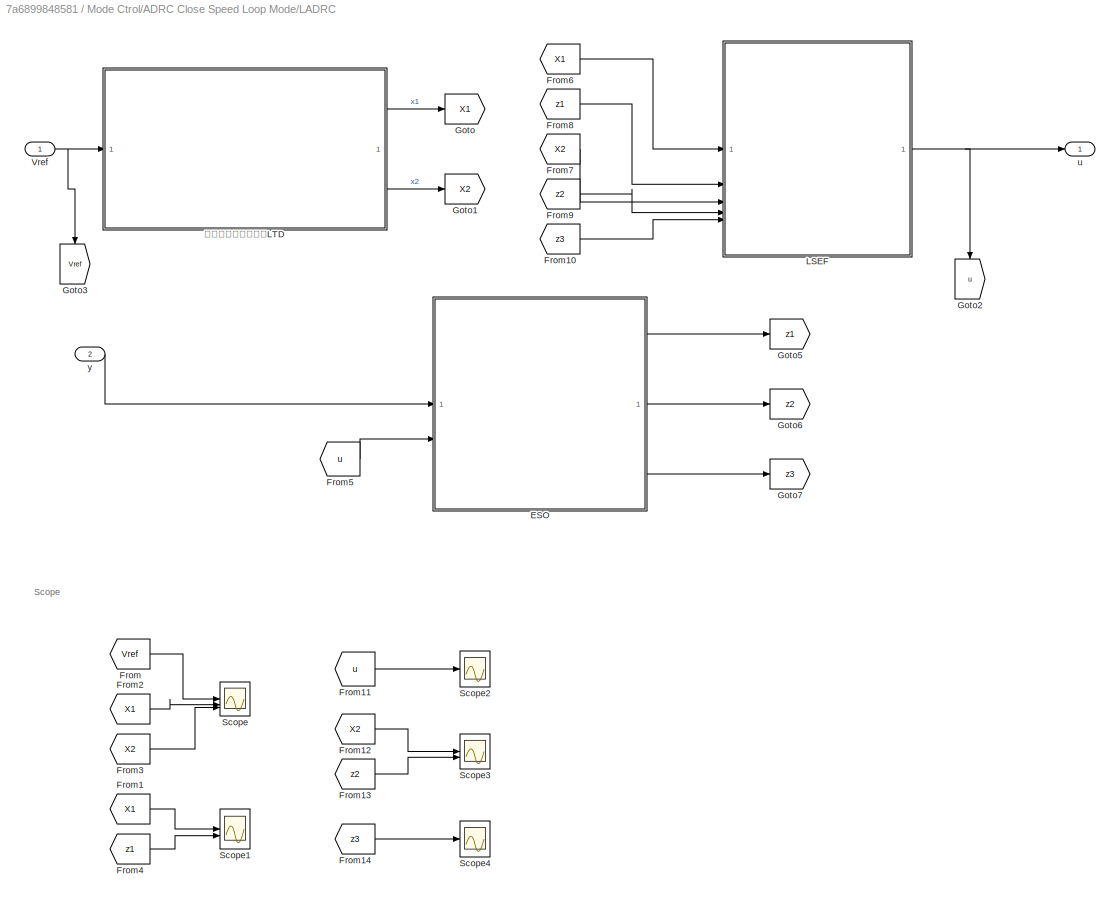
BLOCK [SubSystem] Mode Ctrol/ADRC Close Speed Loop Mode/LADRC
BLOCK [SubSystem] Mode Ctrol/ADRC Close Speed Loop Mode/LADRC/ESO
BLOCK [Constant] Mode Ctrol/ADRC Close Speed Loop Mode/LADRC/ESO/Constant
  Value = Wo
BLOCK [Constant] Mode Ctrol/ADRC Close Speed Loop Mode/LADRC/ESO/Constant1
  Value = 3
BLOCK [Constant] Mode Ctrol/ADRC Close Speed Loop Mode/LADRC/ESO/Constant2
  Value = 2
BLOCK [Constant] Mode Ctrol/ADRC Close Speed Loop Mode/LADRC/ESO/Constant3
  Value = b0
BLOCK [Gain] Mode Ctrol/ADRC Close Speed Loop Mode/LADRC/ESO/Gain
  Gain = 3
BLOCK [Gain] Mode Ctrol/ADRC Close Speed Loop Mode/LADRC/ESO/Gain1
  Gain = 3
BLOCK [Gain] Mode Ctrol/ADRC Close Speed Loop Mode/LADRC/ESO/Gain2
  Gain = -1
BLOCK [Integrator] Mode Ctrol/ADRC Close Speed Loop Mode/LADRC/ESO/Integrator
BLOCK [Integrator] Mode Ctrol/ADRC Close Speed Loop Mode/LADRC/ESO/Integrator1
BLOCK [Integrator] Mode Ctrol/ADRC Close Speed Loop Mode/LADRC/ESO/Integrator2
BLOCK [Math] Mode Ctrol/ADRC Close Speed Loop Mode/LADRC/ESO/Math Function
  Operator = pow
BLOCK [Math] Mode Ctrol/ADRC Close Speed Loop Mode/LADRC/ESO/Math Function1
  Operator = pow
BLOCK [Sum] Mode Ctrol/ADRC Close Speed Loop Mode/LADRC/ESO/Minus
  IconShape = rectangular
  Inputs = +-
BLOCK [Sum] Mode Ctrol/ADRC Close Speed Loop Mode/LADRC/ESO/Minus1
  IconShape = rectangular
  Inputs = +-
BLOCK [Sum] Mode Ctrol/ADRC Close Speed Loop Mode/LADRC/ESO/Minus2
  IconShape = rectangular
  Inputs = +-+
BLOCK [Product] Mode Ctrol/ADRC Close Speed Loop Mode/LADRC/ESO/Product
BLOCK [Product] Mode Ctrol/ADRC Close Speed Loop Mode/LADRC/ESO/Product1
BLOCK [Product] Mode Ctrol/ADRC Close Speed Loop Mode/LADRC/ESO/Product2
BLOCK [Product] Mode Ctrol/ADRC Close Speed Loop Mode/LADRC/ESO/Product3
BLOCK [Inport] Mode Ctrol/ADRC Close Speed Loop Mode/LADRC/ESO/u
  Port = 2
BLOCK [Inport] Mode Ctrol/ADRC Close Speed Loop Mode/LADRC/ESO/y
BLOCK [Outport] Mode Ctrol/ADRC Close Speed Loop Mode/LADRC/ESO/z1
BLOCK [Outport] Mode Ctrol/ADRC Close Speed Loop Mode/LADRC/ESO/z2
  Port = 2
BLOCK [Outport] Mode Ctrol/ADRC Close Speed Loop Mode/LADRC/ESO/z3
  Port = 3
BLOCK [From] Mode Ctrol/ADRC Close Speed Loop Mode/LADRC/From
  GotoTag = Vref
BLOCK [From] Mode Ctrol/ADRC Close Speed Loop Mode/LADRC/From1
  GotoTag = X1
BLOCK [From] Mode Ctrol/ADRC Close Speed Loop Mode/LADRC/From10
  GotoTag = z3
BLOCK [From] Mode Ctrol/ADRC Close Speed Loop Mode/LADRC/From11
  GotoTag = u
BLOCK [From] Mode Ctrol/ADRC Close Speed Loop Mode/LADRC/From12
  GotoTag = X2
BLOCK [From] Mode Ctrol/ADRC Close Speed Loop Mode/LADRC/From13
  GotoTag = z2
BLOCK [From] Mode Ctrol/ADRC Close Speed Loop Mode/LADRC/From14
  GotoTag = z3
BLOCK [From] Mode Ctrol/ADRC Close Speed Loop Mode/LADRC/From2
  GotoTag = X1
BLOCK [From] Mode Ctrol/ADRC Close Speed Loop Mode/LADRC/From3
  GotoTag = X2
BLOCK [From] Mode Ctrol/ADRC Close Speed Loop Mode/LADRC/From4
  GotoTag = z1
BLOCK [From] Mode Ctrol/ADRC Close Speed Loop Mode/LADRC/From5
  GotoTag = u
BLOCK [From] Mode Ctrol/ADRC Close Speed Loop Mode/LADRC/From6
  GotoTag = X1
BLOCK [From] Mode Ctrol/ADRC Close Speed Loop Mode/LADRC/From7
  GotoTag = X2
BLOCK [From] Mode Ctrol/ADRC Close Speed Loop Mode/LADRC/From8
  GotoTag = z1
BLOCK [From] Mode Ctrol/ADRC Close Speed Loop Mode/LADRC/From9
  GotoTag = z2
BLOCK [Goto] Mode Ctrol/ADRC Close Speed Loop Mode/LADRC/Goto
  GotoTag = X1
BLOCK [Goto] Mode Ctrol/ADRC Close Speed Loop Mode/LADRC/Goto1
  GotoTag = X2
BLOCK [Goto] Mode Ctrol/ADRC Close Speed Loop Mode/LADRC/Goto2
  GotoTag = u
  NameLocation = left
BLOCK [Goto] Mode Ctrol/ADRC Close Speed Loop Mode/LADRC/Goto3
  GotoTag = Vref
  NameLocation = left
BLOCK [Goto] Mode Ctrol/ADRC Close Speed Loop Mode/LADRC/Goto5
  GotoTag = z1
BLOCK [Goto] Mode Ctrol/ADRC Close Speed Loop Mode/LADRC/Goto6
  GotoTag = z2
BLOCK [Goto] Mode Ctrol/ADRC Close Speed Loop Mode/LADRC/Goto7
  GotoTag = z3
BLOCK [SubSystem] Mode Ctrol/ADRC Close Speed Loop Mode/LADRC/LSEF
BLOCK [Constant] Mode Ctrol/ADRC Close Speed Loop Mode/LADRC/LSEF/Constant
  Value = Wc
BLOCK [Constant] Mode Ctrol/ADRC Close Speed Loop Mode/LADRC/LSEF/Constant1
  Value = b0
BLOCK [Product] Mode Ctrol/ADRC Close Speed Loop Mode/LADRC/LSEF/Divide
  Inputs = */
BLOCK [Gain] Mode Ctrol/ADRC Close Speed Loop Mode/LADRC/LSEF/Gain
  Gain = 2
BLOCK [Math] Mode Ctrol/ADRC Close Speed Loop Mode/LADRC/LSEF/Math Function
  Operator = square
BLOCK [Sum] Mode Ctrol/ADRC Close Speed Loop Mode/LADRC/LSEF/Minus
  IconShape = rectangular
  Inputs = +-
BLOCK [Sum] Mode Ctrol/ADRC Close Speed Loop Mode/LADRC/LSEF/Minus1
  IconShape = rectangular
  Inputs = +-
BLOCK [Product] Mode Ctrol/ADRC Close Speed Loop Mode/LADRC/LSEF/Product
BLOCK [Product] Mode Ctrol/ADRC Close Speed Loop Mode/LADRC/LSEF/Product1
BLOCK [Sum] Mode Ctrol/ADRC Close Speed Loop Mode/LADRC/LSEF/Sum
  Inputs = |+-
BLOCK [Outport] Mode Ctrol/ADRC Close Speed Loop Mode/LADRC/LSEF/u
BLOCK [Inport] Mode Ctrol/ADRC Close Speed Loop Mode/LADRC/LSEF/x1
BLOCK [Inport] Mode Ctrol/ADRC Close Speed Loop Mode/LADRC/LSEF/x2
  Port = 3
BLOCK [Inport] Mode Ctrol/ADRC Close Speed Loop Mode/LADRC/LSEF/z1
  Port = 2
BLOCK [Inport] Mode Ctrol/ADRC Close Speed Loop Mode/LADRC/LSEF/z2
  Port = 4
BLOCK [Inport] Mode Ctrol/ADRC Close Speed Loop Mode/LADRC/LSEF/z3
  Port = 5
BLOCK [Scope] Mode Ctrol/ADRC Close Speed Loop Mode/LADRC/Scope
  Floating = off
  NumInputPorts = 3
  ScopeSpecificationString = Simulink.scopes.TimeScopeBlockCfg('CurrentConfiguration', extmgr.ConfigurationSet(extmgr.Configuration('Core','General UI',true),extmgr.Configuration('Core','Source UI',true),extmgr.Configuration('Sources','WiredSimulink',true),extmgr.Configuration('Visuals','Time Domain',true,'SerializedDisplays',{struct('MinYLimReal','-63500.70609','MaxYLimReal','55124.39925','YLabelReal','','MinYLimMag','   0.0...<+1506ch>
BLOCK [Scope] Mode Ctrol/ADRC Close Speed Loop Mode/LADRC/Scope1
  Floating = off
  NumInputPorts = 2
  ScopeSpecificationString = Simulink.scopes.TimeScopeBlockCfg('CurrentConfiguration', extmgr.ConfigurationSet(extmgr.Configuration('Core','General UI',true),extmgr.Configuration('Core','Source UI',true),extmgr.Configuration('Sources','WiredSimulink',true,'DataLoggingVariableName','ScopeData2'),extmgr.Configuration('Visuals','Time Domain',true,'SerializedDisplays',{struct('MinYLimReal','-125.91306','MaxYLimReal','1128.09094',...<+1743ch>
BLOCK [Scope] Mode Ctrol/ADRC Close Speed Loop Mode/LADRC/Scope2
  Floating = off
  NumInputPorts = 1
  ScopeSpecificationString = Simulink.scopes.TimeScopeBlockCfg('CurrentConfiguration', extmgr.ConfigurationSet(extmgr.Configuration('Core','General UI',true),extmgr.Configuration('Core','Source UI',true),extmgr.Configuration('Sources','WiredSimulink',true,'DataLoggingVariableName','ScopeData3'),extmgr.Configuration('Visuals','Time Domain',true,'SerializedDisplays',{struct('MinYLimReal','-11750.06511','MaxYLimReal','14504.3803...<+1463ch>
BLOCK [Scope] Mode Ctrol/ADRC Close Speed Loop Mode/LADRC/Scope3
  Floating = off
  NumInputPorts = 2
  ScopeSpecificationString = Simulink.scopes.TimeScopeBlockCfg('CurrentConfiguration', extmgr.ConfigurationSet(extmgr.Configuration('Core','General UI',true),extmgr.Configuration('Core','Source UI',true),extmgr.Configuration('Sources','WiredSimulink',true,'DataLoggingVariableName','ScopeData4'),extmgr.Configuration('Visuals','Time Domain',true,'SerializedDisplays',{struct('MinYLimReal','-102165.70684','MaxYLimReal','828861.61...<+1478ch>
BLOCK [Scope] Mode Ctrol/ADRC Close Speed Loop Mode/LADRC/Scope4
  Floating = off
  NumInputPorts = 1
  ScopeSpecificationString = Simulink.scopes.TimeScopeBlockCfg('CurrentConfiguration', extmgr.ConfigurationSet(extmgr.Configuration('Core','General UI',true),extmgr.Configuration('Core','Source UI',true),extmgr.Configuration('Sources','WiredSimulink',true,'DataLoggingVariableName','ScopeData5'),extmgr.Configuration('Visuals','Time Domain',true,'SerializedDisplays',{struct('MinYLimReal','-8827042.60107','MaxYLimReal','14876395...<+1479ch>
BLOCK [Inport] Mode Ctrol/ADRC Close Speed Loop Mode/LADRC/Vref
BLOCK [Outport] Mode Ctrol/ADRC Close Speed Loop Mode/LADRC/u
BLOCK [Inport] Mode Ctrol/ADRC Close Speed Loop Mode/LADRC/y
  Port = 2
BLOCK [SubSystem] Mode Ctrol/ADRC Close Speed Loop Mode/LADRC/二阶线性微分跟踪器LTD
BLOCK [Sum] Mode Ctrol/ADRC Close Speed Loop Mode/LADRC/二阶线性微分跟踪器LTD/Add
  IconShape = rectangular
  Inputs = --
BLOCK [Constant] Mode Ctrol/ADRC Close Speed Loop Mode/LADRC/二阶线性微分跟踪器LTD/Constant
  Value = r
BLOCK [Constant] Mode Ctrol/ADRC Close Speed Loop Mode/LADRC/二阶线性微分跟踪器LTD/Constant1
  Value = 2
BLOCK [Gain] Mode Ctrol/ADRC Close Speed Loop Mode/LADRC/二阶线性微分跟踪器LTD/Gain
  Gain = 2
BLOCK [Integrator] Mode Ctrol/ADRC Close Speed Loop Mode/LADRC/二阶线性微分跟踪器LTD/Integrator
BLOCK [Integrator] Mode Ctrol/ADRC Close Speed Loop Mode/LADRC/二阶线性微分跟踪器LTD/Integrator1
BLOCK [Math] Mode Ctrol/ADRC Close Speed Loop Mode/LADRC/二阶线性微分跟踪器LTD/Math Function
  Operator = pow
BLOCK [Sum] Mode Ctrol/ADRC Close Speed Loop Mode/LADRC/二阶线性微分跟踪器LTD/Minus
  IconShape = rectangular
  Inputs = +-
BLOCK [Product] Mode Ctrol/ADRC Close Speed Loop Mode/LADRC/二阶线性微分跟踪器LTD/Product
BLOCK [Product] Mode Ctrol/ADRC Close Speed Loop Mode/LADRC/二阶线性微分跟踪器LTD/Product1
BLOCK [Inport] Mode Ctrol/ADRC Close Speed Loop Mode/LADRC/二阶线性微分跟踪器LTD/Vref
BLOCK [Outport] Mode Ctrol/ADRC Close Speed Loop Mode/LADRC/二阶线性微分跟踪器LTD/x1
BLOCK [Outport] Mode Ctrol/ADRC Close Speed Loop Mode/LADRC/二阶线性微分跟踪器LTD/x2
  Port = 2
BLOCK [Inport] Mode Ctrol/ADRC Close Speed Loop Mode/Motor_speed
  Port = 3
BLOCK [Saturate] Mode Ctrol/ADRC Close Speed Loop Mode/Saturation
  Commented = through
  LowerLimit = -4
  UpperLimit = 4
BLOCK [Scope] Mode Ctrol/ADRC Close Speed Loop Mode/Scope1
  Floating = off
  NumInputPorts = 2
  ScopeSpecificationString = Simulink.scopes.TimeScopeBlockCfg('CurrentConfiguration', extmgr.ConfigurationSet(extmgr.Configuration('Core','General UI',true,'FigureColor',[1 1 1]),extmgr.Configuration('Core','Source UI',true),extmgr.Configuration('Sources','WiredSimulink',true,'DataLoggingVariableName','ScopeData4'),extmgr.Configuration('Visuals','Time Domain',true,'SerializedDisplays',{struct('MinYLimReal','-6610.50129','Max...<+1766ch>
BLOCK [Scope] Mode Ctrol/ADRC Close Speed Loop Mode/Scope2
  Floating = off
  NumInputPorts = 2
  ScopeSpecificationString = Simulink.scopes.TimeScopeBlockCfg('CurrentConfiguration', extmgr.ConfigurationSet(extmgr.Configuration('Core','General UI',true,'FigureColor',[1 1 1]),extmgr.Configuration('Core','Source UI',true),extmgr.Configuration('Sources','WiredSimulink',true,'DataLoggingVariableName','ScopeData1'),extmgr.Configuration('Visuals','Time Domain',true,'SerializedDisplays',{struct('MinYLimReal','-2806695.03903','...<+1786ch>
BLOCK [Inport] Mode Ctrol/ADRC Close Speed Loop Mode/Target_speed
  Port = 2
BLOCK [Inport] Mode Ctrol/ADRC Close Speed Loop Mode/currentDC
  Port = 10
BLOCK [Inport] Mode Ctrol/Current_a
  Port = 4
BLOCK [Inport] Mode Ctrol/Current_b
  Port = 5
BLOCK [Inport] Mode Ctrol/Current_c
  Port = 6
BLOCK [Inport] Mode Ctrol/Dir
BLOCK [Outport] Mode Ctrol/G
BLOCK [Inport] Mode Ctrol/Hall_a
  Port = 7
BLOCK [Inport] Mode Ctrol/Hall_b
  Port = 8
BLOCK [Inport] Mode Ctrol/Hall_c
  Port = 9
BLOCK [Inport] Mode Ctrol/Motor_speed
  Port = 3
BLOCK [Inport] Mode Ctrol/Target_speed
  Port = 2
BLOCK [Inport] Mode Ctrol/currentDC
  Port = 10
BLOCK [Scope] Scope
  Floating = off
  NumInputPorts = 2
  ScopeSpecificationString = Simulink.scopes.TimeScopeBlockCfg('CurrentConfiguration', extmgr.ConfigurationSet(extmgr.Configuration('Core','General UI',true),extmgr.Configuration('Core','Source UI',true),extmgr.Configuration('Sources','WiredSimulink',true),extmgr.Configuration('Visuals','Time Domain',true,'SerializedDisplays',{struct('MinYLimReal','1987.2235','MaxYLimReal','2009.7504','YLabelReal','Speed(rpm)','MinYLimMag','1...<+1548ch>
BLOCK [Scope] Scope1
  Commented = on
  Floating = off
  NumInputPorts = 1
  ScopeSpecificationString = Simulink.scopes.TimeScopeBlockCfg('CurrentConfiguration', extmgr.ConfigurationSet(extmgr.Configuration('Core','General UI',true),extmgr.Configuration('Core','Source UI',true),extmgr.Configuration('Sources','WiredSimulink',true,'DataLoggingVariableName','ScopeData1'),extmgr.Configuration('Visuals','Time Domain',true,'SerializedDisplays',{struct('MinYLimReal','-49.20997','MaxYLimReal','442.88973','Y...<+1420ch>
BLOCK [Scope] Scope2
  Floating = off
  NumInputPorts = 1
  ScopeSpecificationString = Simulink.scopes.TimeScopeBlockCfg('CurrentConfiguration', extmgr.ConfigurationSet(extmgr.Configuration('Core','General UI',true),extmgr.Configuration('Core','Source UI',true),extmgr.Configuration('Sources','WiredSimulink',true,'DataLoggingVariableName','ScopeData1'),extmgr.Configuration('Visuals','Time Domain',true,'SerializedDisplays',{struct('MinYLimReal','-193.38228','MaxYLimReal','267.29822','...<+1447ch>
BLOCK [Scope] Scope3
  Floating = off
  NumInputPorts = 4
  ScopeSpecificationString = Simulink.scopes.TimeScopeBlockCfg('CurrentConfiguration', extmgr.ConfigurationSet(extmgr.Configuration('Core','General UI',true),extmgr.Configuration('Core','Source UI',true),extmgr.Configuration('Sources','WiredSimulink',true,'DataLoggingVariableName','ScopeData3'),extmgr.Configuration('Visuals','Time Domain',true,'SerializedDisplays',{struct('MinYLimReal','-7.29931','MaxYLimReal','7.31029','YLab...<+1663ch>
BLOCK [Scope] Scope4
  Floating = off
  NumInputPorts = 3
  ScopeSpecificationString = Simulink.scopes.TimeScopeBlockCfg('CurrentConfiguration', extmgr.ConfigurationSet(extmgr.Configuration('Core','General UI',true),extmgr.Configuration('Core','Source UI',true),extmgr.Configuration('Sources','WiredSimulink',true,'DataLoggingVariableName','ScopeData4'),extmgr.Configuration('Visuals','Time Domain',true,'SerializedDisplays',{struct('MinYLimReal','-0.125','MaxYLimReal','1.125','YLabelRe...<+1564ch>
BLOCK [Scope] Scope5
  Floating = off
  NumInputPorts = 1
  ScopeSpecificationString = Simulink.scopes.TimeScopeBlockCfg('CurrentConfiguration', extmgr.ConfigurationSet(extmgr.Configuration('Core','General UI',true),extmgr.Configuration('Core','Source UI',true),extmgr.Configuration('Sources','WiredSimulink',true,'DataLoggingVariableName','ScopeData5'),extmgr.Configuration('Visuals','Time Domain',true,'SerializedDisplays',{struct('MinYLimReal','-0.3927','MaxYLimReal','3.53429','YLabe...<+1443ch>
BLOCK [Scope] Scope6
  Floating = off
  NumInputPorts = 2
  ScopeSpecificationString = Simulink.scopes.TimeScopeBlockCfg('CurrentConfiguration', extmgr.ConfigurationSet(extmgr.Configuration('Core','General UI',true),extmgr.Configuration('Core','Source UI',true),extmgr.Configuration('Sources','WiredSimulink',true,'DataLoggingVariableName','ScopeData1'),extmgr.Configuration('Visuals','Time Domain',true,'SerializedDisplays',{struct('MinYLimReal','-11.29957','MaxYLimReal','12.7918','YLa...<+2138ch>
BLOCK [Scope] Scope7
  Floating = off
  NumInputPorts = 3
  ScopeSpecificationString = Simulink.scopes.TimeScopeBlockCfg('CurrentConfiguration', extmgr.ConfigurationSet(extmgr.Configuration('Core','General UI',true),extmgr.Configuration('Core','Source UI',true),extmgr.Configuration('Sources','WiredSimulink',true,'DataLoggingVariableName','ScopeData1'),extmgr.Configuration('Visuals','Time Domain',true,'SerializedDisplays',{struct('MinYLimReal','-0.61294','MaxYLimReal','0.4208','YLabe...<+1909ch>
BLOCK [Reference] Series RLC Branch  REF=spsSeriesRLCBranchLib/Series RLC Branch
  LibrarySourceBlock = sps_lib/Passives/Series RLC Branch
  NameLocation = left
  SourceBlock = spsSeriesRLCBranchLib/Series RLC Branch
  SourceType = Series RLC Branch
BLOCK [Reference] Series RLC Branch1  REF=spsSeriesRLCBranchLib/Series RLC Branch
  LibrarySourceBlock = sps_lib/Passives/Series RLC Branch
  SourceBlock = spsSeriesRLCBranchLib/Series RLC Branch
  SourceType = Series RLC Branch
BLOCK [SubSystem] Signal Builder
  ClipboardFcn = sigbuilder_block('clipboard');
  CloseFcn = sigbuilder_block('close');
  ContinueFcn = sigbuilder_block('continue');
  CopyFcn = sigbuilder_block('copy');
  DeleteFcn = sigbuilder_block('delete');
  LoadFcn = sigbuilder_block('load');
  MaskHideContents = on
  ModelCloseFcn = sigbuilder_block('modelClose');
  NameChangeFcn = sigbuilder_block('namechange');
  OpenFcn = sigbuilder_block('open',[3234.3 -525.9 550.8 400.2 ]);
  PauseFcn = sigbuilder_block('pause');
  PreSaveFcn = sigbuilder_block('preSave');
  StartFcn = sigbuilder_block('start');
  StopFcn = sigbuilder_block('stop');
  Tag = STV Subsys
BLOCK [Demux] Signal Builder/Demux
  DisplayOption = none
  Outputs = 1
  Tag = STV Demux
BLOCK [FromWorkspace] Signal Builder/FromWs
  Tag = STV FromWs
  VariableName = tuvar
BLOCK [Outport] Signal Builder/Signal 2
  Tag = STV Outport
BLOCK [SubSystem] Signal Builder1
  ClipboardFcn = sigbuilder_block('clipboard');
  CloseFcn = sigbuilder_block('close');
  ContinueFcn = sigbuilder_block('continue');
  CopyFcn = sigbuilder_block('copy');
  DeleteFcn = sigbuilder_block('delete');
  LoadFcn = sigbuilder_block('load');
  MaskHideContents = on
  ModelCloseFcn = sigbuilder_block('modelClose');
  NameChangeFcn = sigbuilder_block('namechange');
  OpenFcn = sigbuilder_block('open',[281.4 79.2 550.8 400.2 ]);
  PauseFcn = sigbuilder_block('pause');
  PreSaveFcn = sigbuilder_block('preSave');
  StartFcn = sigbuilder_block('start');
  StopFcn = sigbuilder_block('stop');
  Tag = STV Subsys
BLOCK [Demux] Signal Builder1/Demux
  DisplayOption = none
  Outputs = 1
  Tag = STV Demux
BLOCK [FromWorkspace] Signal Builder1/FromWs
  Tag = STV FromWs
  VariableName = tuvar
BLOCK [Outport] Signal Builder1/Signal 2
  Tag = STV Outport
BLOCK [SubSystem] Signal Builder2
  ClipboardFcn = sigbuilder_block('clipboard');
  CloseFcn = sigbuilder_block('close');
  ContinueFcn = sigbuilder_block('continue');
  CopyFcn = sigbuilder_block('copy');
  DeleteFcn = sigbuilder_block('delete');
  LoadFcn = sigbuilder_block('load');
  MaskHideContents = on
  ModelCloseFcn = sigbuilder_block('modelClose');
  NameChangeFcn = sigbuilder_block('namechange');
  OpenFcn = sigbuilder_block('open',[281.4 79.2 550.8 400.2 ]);
  PauseFcn = sigbuilder_block('pause');
  PreSaveFcn = sigbuilder_block('preSave');
  StartFcn = sigbuilder_block('start');
  StopFcn = sigbuilder_block('stop');
  Tag = STV Subsys
BLOCK [Demux] Signal Builder2/Demux
  DisplayOption = none
  Outputs = 1
  Tag = STV Demux
BLOCK [FromWorkspace] Signal Builder2/FromWs
  Tag = STV FromWs
  VariableName = tuvar
BLOCK [Outport] Signal Builder2/Signal 2
  Tag = STV Outport
BLOCK [SubSystem] Signal Builder3
  ClipboardFcn = sigbuilder_block('clipboard');
  CloseFcn = sigbuilder_block('close');
  ContinueFcn = sigbuilder_block('continue');
  CopyFcn = sigbuilder_block('copy');
  DeleteFcn = sigbuilder_block('delete');
  LoadFcn = sigbuilder_block('load');
  MaskHideContents = on
  ModelCloseFcn = sigbuilder_block('modelClose');
  NameChangeFcn = sigbuilder_block('namechange');
  OpenFcn = sigbuilder_block('open',[281.4 79.2 550.8 400.2 ]);
  PauseFcn = sigbuilder_block('pause');
  PreSaveFcn = sigbuilder_block('preSave');
  StartFcn = sigbuilder_block('start');
  StopFcn = sigbuilder_block('stop');
  Tag = STV Subsys
BLOCK [Demux] Signal Builder3/Demux
  DisplayOption = none
  Outputs = 1
  Tag = STV Demux
BLOCK [FromWorkspace] Signal Builder3/FromWs
  Tag = STV FromWs
  VariableName = tuvar
BLOCK [Outport] Signal Builder3/Signal 2
  Tag = STV Outport
BLOCK [Step] Step
  After = 0.0005
  SampleTime = 0
  Time = 0
BLOCK [Switch] Switch
  InputSameDT = off
  SaturateOnIntegerOverflow = off
BLOCK [Constant] Target_current1
  Value = 2000
BLOCK [Reference] Two-Level Converter  REF=spsTwoLevelConverterLib/Two-Level Converter
  NameLocation = top
  SourceBlock = spsTwoLevelConverterLib/Two-Level Converter
  SourceType = Two-Level Converter
BLOCK [Reference] powergui  REF=spspowerguiLib/powergui
  Priority = 1
  SourceBlock = spspowerguiLib/powergui
  SourceType = PSB option menu block
ANNOTATION (root): Control
ANNOTATION (root): Converter
ANNOTATION (root): Dir
ANNOTATION (root): Driver and Motor
ANNOTATION (root): Scope
ANNOTATION Commutation Logic: AH AL BH BL CH CL
ANNOTATION Mode Ctrol/ADRC Close Speed Loop Mode/Close Current Loop Mode PWM/反转逻辑: 0 0 0 1 1 0 0 1 1 0 0 0 0 1 0 0 1 0 1 0 0 0 0 1 1 0 0 1 0 0 0 0 1 0 0 1
ANNOTATION Mode Ctrol/ADRC Close Speed Loop Mode/Close Current Loop Mode PWM/反转逻辑: 1 2 3 4 5 6
ANNOTATION Mode Ctrol/ADRC Close Speed Loop Mode/LADRC: Scope
ANNOTATION Mode Ctrol/ADRC Close Speed Loop Mode/LADRC/二阶线性微分跟踪器LTD: r可以理解为一个滤波系数，r越小滤波效果越好，r越大，跟踪速度越快。
ANNOTATION Mode Ctrol/ADRC Close Speed Loop Mode/LADRC/二阶线性微分跟踪器LTD: 二阶线性微分跟踪器
LINE Analog Filter Design1:1 -> Goto15:1
NET Analog Filter Design2:1 -> Goto21:1, Scope6:2
LINE BLDC:1 -> Bus Selector1:1
LINE Bus Selector1:1 -> Goto6:1
LINE Bus Selector1:10 -> Goto14:1
LINE Bus Selector1:11 -> Goto17:1
LINE Bus Selector1:12 -> Goto19:1
LINE Bus Selector1:2 -> Goto5:1
LINE Bus Selector1:3 -> Goto7:1
LINE Bus Selector1:4 -> Goto1:1
LINE Bus Selector1:5 -> Goto2:1
LINE Bus Selector1:6 -> Goto3:1
LINE Bus Selector1:7 -> Gain:1
LINE Bus Selector1:8 -> Goto9:1
LINE Bus Selector1:9 -> Gain5:1
LINE Commutation Logic/Constant1:1 -> Commutation Logic/Multiport Switch:3
LINE Commutation Logic/Constant2:1 -> Commutation Logic/Multiport Switch:4
LINE Commutation Logic/Constant4:1 -> Commutation Logic/Multiport Switch:5
LINE Commutation Logic/Constant5:1 -> Commutation Logic/Multiport Switch:6
LINE Commutation Logic/Constant6:1 -> Commutation Logic/Multiport Switch:7
LINE Commutation Logic/Constant:1 -> Commutation Logic/Multiport Switch:2
LINE Commutation Logic/Multiport Switch:1 -> Commutation Logic/  Switching pattern:1
LINE Commutation Logic/sector:1 -> Commutation Logic/Multiport Switch:1
LINE Constant2:1 -> Switch:1
LINE Constant3:1 -> Switch:3
LINE Constant:1 -> BLDC:1
NET Current Measurement:1 -> Analog Filter Design2:1, Scope6:1
LINE From10:1 -> Scope:2
LINE From11:1 -> Scope1:1
LINE From12:1 -> Scope3:2
LINE From13:1 -> Scope3:3
LINE From14:1 -> Scope3:4
LINE From15:1 -> Scope3:1
LINE From16:1 -> Scope4:1
LINE From17:1 -> Scope4:2
LINE From18:1 -> Scope4:3
LINE From19:1 -> Scope7:2
LINE From1:1 -> Two-Level Converter:1
LINE From20:1 -> MATLAB Function2:1
LINE From21:1 -> Scope5:1
LINE From22:1 -> Scope7:3
LINE From23:1 -> Mode Ctrol:7
LINE From24:1 -> Mode Ctrol:8
LINE From25:1 -> Mode Ctrol:9
LINE From29:1 -> Scope2:1
LINE From2:1 -> MATLAB Function1:2
LINE From30:1 -> Mode Ctrol:3
LINE From31:1 -> Mode Ctrol:2
LINE From32:1 -> Scope:1
LINE From3:1 -> MATLAB Function1:3
LINE From46:1 -> Switch:2
LINE From47:1 -> Gain1:1
LINE From52:1 -> Memory:1
LINE From53:1 -> Mode Ctrol:1
LINE From5:1 -> Mode Ctrol:10
LINE From6:1 -> Scope7:1
LINE From7:1 -> Mode Ctrol:4
LINE From8:1 -> Mode Ctrol:5
LINE From9:1 -> Mode Ctrol:6
LINE From:1 -> MATLAB Function1:1
LINE Gain1:1 -> Goto20:1
LINE Gain5:1 -> Analog Filter Design1:1
LINE Gain:1 -> Goto8:1
LINE MATLAB Function1:1 -> Goto10:1
LINE MATLAB Function1:2 -> Goto11:1
LINE MATLAB Function1:3 -> Goto12:1
LINE MATLAB Function2:1 -> Goto13:1
LINE Mode Ctrol/ADRC Close Speed Loop Mode/Add:1 -> Mode Ctrol/ADRC Close Speed Loop Mode/Close Current Loop Mode PWM:1
LINE Mode Ctrol/ADRC Close Speed Loop Mode/Band-Limited White Noise:1 -> Mode Ctrol/ADRC Close Speed Loop Mode/Add:1
LINE Mode Ctrol/ADRC Close Speed Loop Mode/Close Current Loop Mode PWM/Abs1:1 -> Mode Ctrol/ADRC Close Speed Loop Mode/Close Current Loop Mode PWM/Analog Filter Design3:1
LINE Mode Ctrol/ADRC Close Speed Loop Mode/Close Current Loop Mode PWM/Abs2:1 -> Mode Ctrol/ADRC Close Speed Loop Mode/Close Current Loop Mode PWM/Analog Filter Design1:1
NET Mode Ctrol/ADRC Close Speed Loop Mode/Close Current Loop Mode PWM/Abs3:1 -> Mode Ctrol/ADRC Close Speed Loop Mode/Close Current Loop Mode PWM/PWM Generator:1, Mode Ctrol/ADRC Close Speed Loop Mode/Close Current Loop Mode PWM/Scope6:2
NET Mode Ctrol/ADRC Close Speed Loop Mode/Close Current Loop Mode PWM/Abs:1 -> Mode Ctrol/ADRC Close Speed Loop Mode/Close Current Loop Mode PWM/Analog Filter Design2:1, Mode Ctrol/ADRC Close Speed Loop Mode/Close Current Loop Mode PWM/Scope11:1
LINE Mode Ctrol/ADRC Close Speed Loop Mode/Close Current Loop Mode PWM/Add:1 -> Mode Ctrol/ADRC Close Speed Loop Mode/Close Current Loop Mode PWM/Gain:1
LINE Mode Ctrol/ADRC Close Speed Loop Mode/Close Current Loop Mode PWM/Analog Filter Design1:1 -> Mode Ctrol/ADRC Close Speed Loop Mode/Close Current Loop Mode PWM/Add:3
NET Mode Ctrol/ADRC Close Speed Loop Mode/Close Current Loop Mode PWM/Analog Filter Design2:1 -> Mode Ctrol/ADRC Close Speed Loop Mode/Close Current Loop Mode PWM/Add:1, Mode Ctrol/ADRC Close Speed Loop Mode/Close Current Loop Mode PWM/Scope11:2
LINE Mode Ctrol/ADRC Close Speed Loop Mode/Close Current Loop Mode PWM/Analog Filter Design3:1 -> Mode Ctrol/ADRC Close Speed Loop Mode/Close Current Loop Mode PWM/Add:2
LINE Mode Ctrol/ADRC Close Speed Loop Mode/Close Current Loop Mode PWM/Analog Filter Design4:1 -> Mode Ctrol/ADRC Close Speed Loop Mode/Close Current Loop Mode PWM/Subsystem1:1
NET Mode Ctrol/ADRC Close Speed Loop Mode/Close Current Loop Mode PWM/Compare To Zero1:1 -> Mode Ctrol/ADRC Close Speed Loop Mode/Close Current Loop Mode PWM/Logical Operator3:2, Mode Ctrol/ADRC Close Speed Loop Mode/Close Current Loop Mode PWM/Scope2:2
NET Mode Ctrol/ADRC Close Speed Loop Mode/Close Current Loop Mode PWM/Compare To Zero2:1 -> Mode Ctrol/ADRC Close Speed Loop Mode/Close Current Loop Mode PWM/Logical Operator1:2, Mode Ctrol/ADRC Close Speed Loop Mode/Close Current Loop Mode PWM/Scope2:3
NET Mode Ctrol/ADRC Close Speed Loop Mode/Close Current Loop Mode PWM/Compare To Zero3:1 -> Mode Ctrol/ADRC Close Speed Loop Mode/Close Current Loop Mode PWM/Logical Operator4:2, Mode Ctrol/ADRC Close Speed Loop Mode/Close Current Loop Mode PWM/Scope2:4
NET Mode Ctrol/ADRC Close Speed Loop Mode/Close Current Loop Mode PWM/Compare To Zero4:1 -> Mode Ctrol/ADRC Close Speed Loop Mode/Close Current Loop Mode PWM/Logical Operator2:2, Mode Ctrol/ADRC Close Speed Loop Mode/Close Current Loop Mode PWM/Scope2:5
NET Mode Ctrol/ADRC Close Speed Loop Mode/Close Current Loop Mode PWM/Compare To Zero5:1 -> Mode Ctrol/ADRC Close Speed Loop Mode/Close Current Loop Mode PWM/Logical Operator5:2, Mode Ctrol/ADRC Close Speed Loop Mode/Close Current Loop Mode PWM/Scope2:6
NET Mode Ctrol/ADRC Close Speed Loop Mode/Close Current Loop Mode PWM/Compare To Zero:1 -> Mode Ctrol/ADRC Close Speed Loop Mode/Close Current Loop Mode PWM/Logical Operator:2, Mode Ctrol/ADRC Close Speed Loop Mode/Close Current Loop Mode PWM/Scope2:1
LINE Mode Ctrol/ADRC Close Speed Loop Mode/Close Current Loop Mode PWM/Constant1:1 -> Mode Ctrol/ADRC Close Speed Loop Mode/Close Current Loop Mode PWM/Switch1:1
LINE Mode Ctrol/ADRC Close Speed Loop Mode/Close Current Loop Mode PWM/Constant2:1 -> Mode Ctrol/ADRC Close Speed Loop Mode/Close Current Loop Mode PWM/Switch1:3
NET Mode Ctrol/ADRC Close Speed Loop Mode/Close Current Loop Mode PWM/Current_a:1 -> Mode Ctrol/ADRC Close Speed Loop Mode/Close Current Loop Mode PWM/Abs:1, Mode Ctrol/ADRC Close Speed Loop Mode/Close Current Loop Mode PWM/Mux:1
NET Mode Ctrol/ADRC Close Speed Loop Mode/Close Current Loop Mode PWM/Current_b:1 -> Mode Ctrol/ADRC Close Speed Loop Mode/Close Current Loop Mode PWM/Abs1:1, Mode Ctrol/ADRC Close Speed Loop Mode/Close Current Loop Mode PWM/Mux:2
NET Mode Ctrol/ADRC Close Speed Loop Mode/Close Current Loop Mode PWM/Current_c:1 -> Mode Ctrol/ADRC Close Speed Loop Mode/Close Current Loop Mode PWM/Abs2:1, Mode Ctrol/ADRC Close Speed Loop Mode/Close Current Loop Mode PWM/Mux:3
LINE Mode Ctrol/ADRC Close Speed Loop Mode/Close Current Loop Mode PWM/Data Type Conversion10:1 -> Mode Ctrol/ADRC Close Speed Loop Mode/Close Current Loop Mode PWM/Mux3:4
LINE Mode Ctrol/ADRC Close Speed Loop Mode/Close Current Loop Mode PWM/Data Type Conversion11:1 -> Mode Ctrol/ADRC Close Speed Loop Mode/Close Current Loop Mode PWM/Mux3:5
LINE Mode Ctrol/ADRC Close Speed Loop Mode/Close Current Loop Mode PWM/Data Type Conversion6:1 -> Mode Ctrol/ADRC Close Speed Loop Mode/Close Current Loop Mode PWM/Mux3:6
LINE Mode Ctrol/ADRC Close Speed Loop Mode/Close Current Loop Mode PWM/Data Type Conversion7:1 -> Mode Ctrol/ADRC Close Speed Loop Mode/Close Current Loop Mode PWM/Mux3:1
LINE Mode Ctrol/ADRC Close Speed Loop Mode/Close Current Loop Mode PWM/Data Type Conversion8:1 -> Mode Ctrol/ADRC Close Speed Loop Mode/Close Current Loop Mode PWM/Mux3:2
LINE Mode Ctrol/ADRC Close Speed Loop Mode/Close Current Loop Mode PWM/Data Type Conversion9:1 -> Mode Ctrol/ADRC Close Speed Loop Mode/Close Current Loop Mode PWM/Mux3:3
NET Mode Ctrol/ADRC Close Speed Loop Mode/Close Current Loop Mode PWM/Demux2:1 -> Mode Ctrol/ADRC Close Speed Loop Mode/Close Current Loop Mode PWM/Compare To Zero1:1, Mode Ctrol/ADRC Close Speed Loop Mode/Close Current Loop Mode PWM/Compare To Zero:1
NET Mode Ctrol/ADRC Close Speed Loop Mode/Close Current Loop Mode PWM/Demux2:2 -> Mode Ctrol/ADRC Close Speed Loop Mode/Close Current Loop Mode PWM/Compare To Zero2:1, Mode Ctrol/ADRC Close Speed Loop Mode/Close Current Loop Mode PWM/Compare To Zero3:1
NET Mode Ctrol/ADRC Close Speed Loop Mode/Close Current Loop Mode PWM/Demux2:3 -> Mode Ctrol/ADRC Close Speed Loop Mode/Close Current Loop Mode PWM/Compare To Zero4:1, Mode Ctrol/ADRC Close Speed Loop Mode/Close Current Loop Mode PWM/Compare To Zero5:1
LINE Mode Ctrol/ADRC Close Speed Loop Mode/Close Current Loop Mode PWM/Dir:1 -> Mode Ctrol/ADRC Close Speed Loop Mode/Close Current Loop Mode PWM/Switch1:2
LINE Mode Ctrol/ADRC Close Speed Loop Mode/Close Current Loop Mode PWM/Hall_a:1 -> Mode Ctrol/ADRC Close Speed Loop Mode/Close Current Loop Mode PWM/Mux1:1
LINE Mode Ctrol/ADRC Close Speed Loop Mode/Close Current Loop Mode PWM/Hall_b:1 -> Mode Ctrol/ADRC Close Speed Loop Mode/Close Current Loop Mode PWM/Mux1:2
LINE Mode Ctrol/ADRC Close Speed Loop Mode/Close Current Loop Mode PWM/Hall_c:1 -> Mode Ctrol/ADRC Close Speed Loop Mode/Close Current Loop Mode PWM/Mux1:3
LINE Mode Ctrol/ADRC Close Speed Loop Mode/Close Current Loop Mode PWM/Logical Operator1:1 -> Mode Ctrol/ADRC Close Speed Loop Mode/Close Current Loop Mode PWM/Data Type Conversion9:1
LINE Mode Ctrol/ADRC Close Speed Loop Mode/Close Current Loop Mode PWM/Logical Operator2:1 -> Mode Ctrol/ADRC Close Speed Loop Mode/Close Current Loop Mode PWM/Data Type Conversion11:1
LINE Mode Ctrol/ADRC Close Speed Loop Mode/Close Current Loop Mode PWM/Logical Operator3:1 -> Mode Ctrol/ADRC Close Speed Loop Mode/Close Current Loop Mode PWM/Data Type Conversion8:1
LINE Mode Ctrol/ADRC Close Speed Loop Mode/Close Current Loop Mode PWM/Logical Operator4:1 -> Mode Ctrol/ADRC Close Speed Loop Mode/Close Current Loop Mode PWM/Data Type Conversion10:1
LINE Mode Ctrol/ADRC Close Speed Loop Mode/Close Current Loop Mode PWM/Logical Operator5:1 -> Mode Ctrol/ADRC Close Speed Loop Mode/Close Current Loop Mode PWM/Data Type Conversion6:1
LINE Mode Ctrol/ADRC Close Speed Loop Mode/Close Current Loop Mode PWM/Logical Operator:1 -> Mode Ctrol/ADRC Close Speed Loop Mode/Close Current Loop Mode PWM/Data Type Conversion7:1
LINE Mode Ctrol/ADRC Close Speed Loop Mode/Close Current Loop Mode PWM/Memory:1 -> Mode Ctrol/ADRC Close Speed Loop Mode/Close Current Loop Mode PWM/Switch:2
NET Mode Ctrol/ADRC Close Speed Loop Mode/Close Current Loop Mode PWM/Mux1:1 -> Mode Ctrol/ADRC Close Speed Loop Mode/Close Current Loop Mode PWM/反转逻辑:1, Mode Ctrol/ADRC Close Speed Loop Mode/Close Current Loop Mode PWM/正转逻辑:1
NET Mode Ctrol/ADRC Close Speed Loop Mode/Close Current Loop Mode PWM/Mux3:1 -> Mode Ctrol/ADRC Close Speed Loop Mode/Close Current Loop Mode PWM/G:1, Mode Ctrol/ADRC Close Speed Loop Mode/Close Current Loop Mode PWM/Scope:1
LINE Mode Ctrol/ADRC Close Speed Loop Mode/Close Current Loop Mode PWM/Mux:1 -> Mode Ctrol/ADRC Close Speed Loop Mode/Close Current Loop Mode PWM/Scope4:2
NET Mode Ctrol/ADRC Close Speed Loop Mode/Close Current Loop Mode PWM/PID Controller:1 -> Mode Ctrol/ADRC Close Speed Loop Mode/Close Current Loop Mode PWM/Abs3:1, Mode Ctrol/ADRC Close Speed Loop Mode/Close Current Loop Mode PWM/Scope10:1
NET Mode Ctrol/ADRC Close Speed Loop Mode/Close Current Loop Mode PWM/PWM Generator:1 -> Mode Ctrol/ADRC Close Speed Loop Mode/Close Current Loop Mode PWM/Logical Operator1:1, Mode Ctrol/ADRC Close Speed Loop Mode/Close Current Loop Mode PWM/Logical Operator2:1, Mode Ctrol/ADRC Close Speed Loop Mode/Close Current Loop Mode PWM/Logical Operator3:1, Mode Ctrol/ADRC Close Speed Loop Mode/Close Current Loop Mode PWM/Logical Operator4:1, Mode Ctrol/ADRC Close Speed Loop Mode/Close Current Loop Mode PWM/Logical Operator5:1, Mode Ctrol/ADRC Close Speed Loop Mode/Close Current Loop Mode PWM/Logical Operator:1, Mode Ctrol/ADRC Close Speed Loop Mode/Close Current Loop Mode PWM/Scope1:1
NET Mode Ctrol/ADRC Close Speed Loop Mode/Close Current Loop Mode PWM/Product:1 -> Mode Ctrol/ADRC Close Speed Loop Mode/Close Current Loop Mode PWM/Analog Filter Design4:1, Mode Ctrol/ADRC Close Speed Loop Mode/Close Current Loop Mode PWM/Scope4:1
LINE Mode Ctrol/ADRC Close Speed Loop Mode/Close Current Loop Mode PWM/Subsystem1/Add:1 -> Mode Ctrol/ADRC Close Speed Loop Mode/Close Current Loop Mode PWM/Subsystem1/Divide:1
LINE Mode Ctrol/ADRC Close Speed Loop Mode/Close Current Loop Mode PWM/Subsystem1/Constant:1 -> Mode Ctrol/ADRC Close Speed Loop Mode/Close Current Loop Mode PWM/Subsystem1/Divide:2
LINE Mode Ctrol/ADRC Close Speed Loop Mode/Close Current Loop Mode PWM/Subsystem1/Divide:1 -> Mode Ctrol/ADRC Close Speed Loop Mode/Close Current Loop Mode PWM/Subsystem1/Out1:1
LINE Mode Ctrol/ADRC Close Speed Loop Mode/Close Current Loop Mode PWM/Subsystem1/In1:1 -> Mode Ctrol/ADRC Close Speed Loop Mode/Close Current Loop Mode PWM/Subsystem1/Tapped Delay:1
LINE Mode Ctrol/ADRC Close Speed Loop Mode/Close Current Loop Mode PWM/Subsystem1/MinMax1:1 -> Mode Ctrol/ADRC Close Speed Loop Mode/Close Current Loop Mode PWM/Subsystem1/Add:3
LINE Mode Ctrol/ADRC Close Speed Loop Mode/Close Current Loop Mode PWM/Subsystem1/MinMax:1 -> Mode Ctrol/ADRC Close Speed Loop Mode/Close Current Loop Mode PWM/Subsystem1/Add:1
LINE Mode Ctrol/ADRC Close Speed Loop Mode/Close Current Loop Mode PWM/Subsystem1/Sum of Elements:1 -> Mode Ctrol/ADRC Close Speed Loop Mode/Close Current Loop Mode PWM/Subsystem1/Add:2
NET Mode Ctrol/ADRC Close Speed Loop Mode/Close Current Loop Mode PWM/Subsystem1/Tapped Delay:1 -> Mode Ctrol/ADRC Close Speed Loop Mode/Close Current Loop Mode PWM/Subsystem1/MinMax1:1, Mode Ctrol/ADRC Close Speed Loop Mode/Close Current Loop Mode PWM/Subsystem1/MinMax:1, Mode Ctrol/ADRC Close Speed Loop Mode/Close Current Loop Mode PWM/Subsystem1/Sum of Elements:1
NET Mode Ctrol/ADRC Close Speed Loop Mode/Close Current Loop Mode PWM/Subsystem1:1 -> Mode Ctrol/ADRC Close Speed Loop Mode/Close Current Loop Mode PWM/Scope5:2, Mode Ctrol/ADRC Close Speed Loop Mode/Close Current Loop Mode PWM/Sum:2
LINE Mode Ctrol/ADRC Close Speed Loop Mode/Close Current Loop Mode PWM/Subsystem2/Add:1 -> Mode Ctrol/ADRC Close Speed Loop Mode/Close Current Loop Mode PWM/Subsystem2/Divide:1
LINE Mode Ctrol/ADRC Close Speed Loop Mode/Close Current Loop Mode PWM/Subsystem2/Constant:1 -> Mode Ctrol/ADRC Close Speed Loop Mode/Close Current Loop Mode PWM/Subsystem2/Divide:2
LINE Mode Ctrol/ADRC Close Speed Loop Mode/Close Current Loop Mode PWM/Subsystem2/Divide:1 -> Mode Ctrol/ADRC Close Speed Loop Mode/Close Current Loop Mode PWM/Subsystem2/Out1:1
LINE Mode Ctrol/ADRC Close Speed Loop Mode/Close Current Loop Mode PWM/Subsystem2/In1:1 -> Mode Ctrol/ADRC Close Speed Loop Mode/Close Current Loop Mode PWM/Subsystem2/Tapped Delay:1
LINE Mode Ctrol/ADRC Close Speed Loop Mode/Close Current Loop Mode PWM/Subsystem2/MinMax1:1 -> Mode Ctrol/ADRC Close Speed Loop Mode/Close Current Loop Mode PWM/Subsystem2/Add:3
LINE Mode Ctrol/ADRC Close Speed Loop Mode/Close Current Loop Mode PWM/Subsystem2/MinMax:1 -> Mode Ctrol/ADRC Close Speed Loop Mode/Close Current Loop Mode PWM/Subsystem2/Add:1
LINE Mode Ctrol/ADRC Close Speed Loop Mode/Close Current Loop Mode PWM/Subsystem2/Sum of Elements:1 -> Mode Ctrol/ADRC Close Speed Loop Mode/Close Current Loop Mode PWM/Subsystem2/Add:2
NET Mode Ctrol/ADRC Close Speed Loop Mode/Close Current Loop Mode PWM/Subsystem2/Tapped Delay:1 -> Mode Ctrol/ADRC Close Speed Loop Mode/Close Current Loop Mode PWM/Subsystem2/MinMax1:1, Mode Ctrol/ADRC Close Speed Loop Mode/Close Current Loop Mode PWM/Subsystem2/MinMax:1, Mode Ctrol/ADRC Close Speed Loop Mode/Close Current Loop Mode PWM/Subsystem2/Sum of Elements:1
LINE Mode Ctrol/ADRC Close Speed Loop Mode/Close Current Loop Mode PWM/Subsystem3/Add:1 -> Mode Ctrol/ADRC Close Speed Loop Mode/Close Current Loop Mode PWM/Subsystem3/Divide:1
LINE Mode Ctrol/ADRC Close Speed Loop Mode/Close Current Loop Mode PWM/Subsystem3/Constant:1 -> Mode Ctrol/ADRC Close Speed Loop Mode/Close Current Loop Mode PWM/Subsystem3/Divide:2
LINE Mode Ctrol/ADRC Close Speed Loop Mode/Close Current Loop Mode PWM/Subsystem3/Divide:1 -> Mode Ctrol/ADRC Close Speed Loop Mode/Close Current Loop Mode PWM/Subsystem3/Out1:1
LINE Mode Ctrol/ADRC Close Speed Loop Mode/Close Current Loop Mode PWM/Subsystem3/In1:1 -> Mode Ctrol/ADRC Close Speed Loop Mode/Close Current Loop Mode PWM/Subsystem3/Tapped Delay:1
LINE Mode Ctrol/ADRC Close Speed Loop Mode/Close Current Loop Mode PWM/Subsystem3/MinMax1:1 -> Mode Ctrol/ADRC Close Speed Loop Mode/Close Current Loop Mode PWM/Subsystem3/Add:3
LINE Mode Ctrol/ADRC Close Speed Loop Mode/Close Current Loop Mode PWM/Subsystem3/MinMax:1 -> Mode Ctrol/ADRC Close Speed Loop Mode/Close Current Loop Mode PWM/Subsystem3/Add:1
LINE Mode Ctrol/ADRC Close Speed Loop Mode/Close Current Loop Mode PWM/Subsystem3/Sum of Elements:1 -> Mode Ctrol/ADRC Close Speed Loop Mode/Close Current Loop Mode PWM/Subsystem3/Add:2
NET Mode Ctrol/ADRC Close Speed Loop Mode/Close Current Loop Mode PWM/Subsystem3/Tapped Delay:1 -> Mode Ctrol/ADRC Close Speed Loop Mode/Close Current Loop Mode PWM/Subsystem3/MinMax1:1, Mode Ctrol/ADRC Close Speed Loop Mode/Close Current Loop Mode PWM/Subsystem3/MinMax:1, Mode Ctrol/ADRC Close Speed Loop Mode/Close Current Loop Mode PWM/Subsystem3/Sum of Elements:1
LINE Mode Ctrol/ADRC Close Speed Loop Mode/Close Current Loop Mode PWM/Subsystem4/Add:1 -> Mode Ctrol/ADRC Close Speed Loop Mode/Close Current Loop Mode PWM/Subsystem4/Divide:1
LINE Mode Ctrol/ADRC Close Speed Loop Mode/Close Current Loop Mode PWM/Subsystem4/Constant:1 -> Mode Ctrol/ADRC Close Speed Loop Mode/Close Current Loop Mode PWM/Subsystem4/Divide:2
LINE Mode Ctrol/ADRC Close Speed Loop Mode/Close Current Loop Mode PWM/Subsystem4/Divide:1 -> Mode Ctrol/ADRC Close Speed Loop Mode/Close Current Loop Mode PWM/Subsystem4/Out1:1
LINE Mode Ctrol/ADRC Close Speed Loop Mode/Close Current Loop Mode PWM/Subsystem4/In1:1 -> Mode Ctrol/ADRC Close Speed Loop Mode/Close Current Loop Mode PWM/Subsystem4/Tapped Delay:1
LINE Mode Ctrol/ADRC Close Speed Loop Mode/Close Current Loop Mode PWM/Subsystem4/MinMax1:1 -> Mode Ctrol/ADRC Close Speed Loop Mode/Close Current Loop Mode PWM/Subsystem4/Add:3
LINE Mode Ctrol/ADRC Close Speed Loop Mode/Close Current Loop Mode PWM/Subsystem4/MinMax:1 -> Mode Ctrol/ADRC Close Speed Loop Mode/Close Current Loop Mode PWM/Subsystem4/Add:1
LINE Mode Ctrol/ADRC Close Speed Loop Mode/Close Current Loop Mode PWM/Subsystem4/Sum of Elements:1 -> Mode Ctrol/ADRC Close Speed Loop Mode/Close Current Loop Mode PWM/Subsystem4/Add:2
NET Mode Ctrol/ADRC Close Speed Loop Mode/Close Current Loop Mode PWM/Subsystem4/Tapped Delay:1 -> Mode Ctrol/ADRC Close Speed Loop Mode/Close Current Loop Mode PWM/Subsystem4/MinMax1:1, Mode Ctrol/ADRC Close Speed Loop Mode/Close Current Loop Mode PWM/Subsystem4/MinMax:1, Mode Ctrol/ADRC Close Speed Loop Mode/Close Current Loop Mode PWM/Subsystem4/Sum of Elements:1
NET Mode Ctrol/ADRC Close Speed Loop Mode/Close Current Loop Mode PWM/Sum:1 -> Mode Ctrol/ADRC Close Speed Loop Mode/Close Current Loop Mode PWM/Memory:1, Mode Ctrol/ADRC Close Speed Loop Mode/Close Current Loop Mode PWM/PID Controller:1, Mode Ctrol/ADRC Close Speed Loop Mode/Close Current Loop Mode PWM/Scope7:1
LINE Mode Ctrol/ADRC Close Speed Loop Mode/Close Current Loop Mode PWM/Switch1:1 -> Mode Ctrol/ADRC Close Speed Loop Mode/Close Current Loop Mode PWM/Product:2
NET Mode Ctrol/ADRC Close Speed Loop Mode/Close Current Loop Mode PWM/Switch:1 -> Mode Ctrol/ADRC Close Speed Loop Mode/Close Current Loop Mode PWM/Demux2:1, Mode Ctrol/ADRC Close Speed Loop Mode/Close Current Loop Mode PWM/Scope3:3
NET Mode Ctrol/ADRC Close Speed Loop Mode/Close Current Loop Mode PWM/Target_current:1 -> Mode Ctrol/ADRC Close Speed Loop Mode/Close Current Loop Mode PWM/Scope5:1, Mode Ctrol/ADRC Close Speed Loop Mode/Close Current Loop Mode PWM/Sum:1
LINE Mode Ctrol/ADRC Close Speed Loop Mode/Close Current Loop Mode PWM/currentDC:1 -> Mode Ctrol/ADRC Close Speed Loop Mode/Close Current Loop Mode PWM/Product:1
LINE Mode Ctrol/ADRC Close Speed Loop Mode/Close Current Loop Mode PWM/反转逻辑/AB:1 -> Mode Ctrol/ADRC Close Speed Loop Mode/Close Current Loop Mode PWM/反转逻辑/Multiport Switch:6
LINE Mode Ctrol/ADRC Close Speed Loop Mode/Close Current Loop Mode PWM/反转逻辑/AC:1 -> Mode Ctrol/ADRC Close Speed Loop Mode/Close Current Loop Mode PWM/反转逻辑/Multiport Switch:5
LINE Mode Ctrol/ADRC Close Speed Loop Mode/Close Current Loop Mode PWM/反转逻辑/Add:1 -> Mode Ctrol/ADRC Close Speed Loop Mode/Close Current Loop Mode PWM/反转逻辑/Multiport Switch:1
LINE Mode Ctrol/ADRC Close Speed Loop Mode/Close Current Loop Mode PWM/反转逻辑/BA:1 -> Mode Ctrol/ADRC Close Speed Loop Mode/Close Current Loop Mode PWM/反转逻辑/Multiport Switch:3
LINE Mode Ctrol/ADRC Close Speed Loop Mode/Close Current Loop Mode PWM/反转逻辑/BC:1 -> Mode Ctrol/ADRC Close Speed Loop Mode/Close Current Loop Mode PWM/反转逻辑/Multiport Switch:7
LINE Mode Ctrol/ADRC Close Speed Loop Mode/Close Current Loop Mode PWM/反转逻辑/CA:1 -> Mode Ctrol/ADRC Close Speed Loop Mode/Close Current Loop Mode PWM/反转逻辑/Multiport Switch:4
LINE Mode Ctrol/ADRC Close Speed Loop Mode/Close Current Loop Mode PWM/反转逻辑/CB:1 -> Mode Ctrol/ADRC Close Speed Loop Mode/Close Current Loop Mode PWM/反转逻辑/Multiport Switch:2
LINE Mode Ctrol/ADRC Close Speed Loop Mode/Close Current Loop Mode PWM/反转逻辑/Demux:1 -> Mode Ctrol/ADRC Close Speed Loop Mode/Close Current Loop Mode PWM/反转逻辑/Gain:1
LINE Mode Ctrol/ADRC Close Speed Loop Mode/Close Current Loop Mode PWM/反转逻辑/Demux:2 -> Mode Ctrol/ADRC Close Speed Loop Mode/Close Current Loop Mode PWM/反转逻辑/Gain1:1
LINE Mode Ctrol/ADRC Close Speed Loop Mode/Close Current Loop Mode PWM/反转逻辑/Demux:3 -> Mode Ctrol/ADRC Close Speed Loop Mode/Close Current Loop Mode PWM/反转逻辑/Gain2:1
LINE Mode Ctrol/ADRC Close Speed Loop Mode/Close Current Loop Mode PWM/反转逻辑/Gain1:1 -> Mode Ctrol/ADRC Close Speed Loop Mode/Close Current Loop Mode PWM/反转逻辑/Add:2
LINE Mode Ctrol/ADRC Close Speed Loop Mode/Close Current Loop Mode PWM/反转逻辑/Gain2:1 -> Mode Ctrol/ADRC Close Speed Loop Mode/Close Current Loop Mode PWM/反转逻辑/Add:3
LINE Mode Ctrol/ADRC Close Speed Loop Mode/Close Current Loop Mode PWM/反转逻辑/Gain:1 -> Mode Ctrol/ADRC Close Speed Loop Mode/Close Current Loop Mode PWM/反转逻辑/Add:1
LINE Mode Ctrol/ADRC Close Speed Loop Mode/Close Current Loop Mode PWM/反转逻辑/Multiport Switch:1 -> Mode Ctrol/ADRC Close Speed Loop Mode/Close Current Loop Mode PWM/反转逻辑/emf_abc:1
LINE Mode Ctrol/ADRC Close Speed Loop Mode/Close Current Loop Mode PWM/反转逻辑/hall_abc:1 -> Mode Ctrol/ADRC Close Speed Loop Mode/Close Current Loop Mode PWM/反转逻辑/Demux:1
NET Mode Ctrol/ADRC Close Speed Loop Mode/Close Current Loop Mode PWM/反转逻辑:1 -> Mode Ctrol/ADRC Close Speed Loop Mode/Close Current Loop Mode PWM/Scope3:2, Mode Ctrol/ADRC Close Speed Loop Mode/Close Current Loop Mode PWM/Switch:3
LINE Mode Ctrol/ADRC Close Speed Loop Mode/Close Current Loop Mode PWM/正转逻辑/AB:1 -> Mode Ctrol/ADRC Close Speed Loop Mode/Close Current Loop Mode PWM/正转逻辑/Multiport Switch:6
LINE Mode Ctrol/ADRC Close Speed Loop Mode/Close Current Loop Mode PWM/正转逻辑/AC:1 -> Mode Ctrol/ADRC Close Speed Loop Mode/Close Current Loop Mode PWM/正转逻辑/Multiport Switch:5
NET Mode Ctrol/ADRC Close Speed Loop Mode/Close Current Loop Mode PWM/正转逻辑/Add:1 -> Mode Ctrol/ADRC Close Speed Loop Mode/Close Current Loop Mode PWM/正转逻辑/Multiport Switch:1, Mode Ctrol/ADRC Close Speed Loop Mode/Close Current Loop Mode PWM/正转逻辑/Scope:1
LINE Mode Ctrol/ADRC Close Speed Loop Mode/Close Current Loop Mode PWM/正转逻辑/BA:1 -> Mode Ctrol/ADRC Close Speed Loop Mode/Close Current Loop Mode PWM/正转逻辑/Multiport Switch:3
LINE Mode Ctrol/ADRC Close Speed Loop Mode/Close Current Loop Mode PWM/正转逻辑/BC:1 -> Mode Ctrol/ADRC Close Speed Loop Mode/Close Current Loop Mode PWM/正转逻辑/Multiport Switch:7
LINE Mode Ctrol/ADRC Close Speed Loop Mode/Close Current Loop Mode PWM/正转逻辑/CA:1 -> Mode Ctrol/ADRC Close Speed Loop Mode/Close Current Loop Mode PWM/正转逻辑/Multiport Switch:4
LINE Mode Ctrol/ADRC Close Speed Loop Mode/Close Current Loop Mode PWM/正转逻辑/CB:1 -> Mode Ctrol/ADRC Close Speed Loop Mode/Close Current Loop Mode PWM/正转逻辑/Multiport Switch:2
LINE Mode Ctrol/ADRC Close Speed Loop Mode/Close Current Loop Mode PWM/正转逻辑/Demux:1 -> Mode Ctrol/ADRC Close Speed Loop Mode/Close Current Loop Mode PWM/正转逻辑/Gain:1
LINE Mode Ctrol/ADRC Close Speed Loop Mode/Close Current Loop Mode PWM/正转逻辑/Demux:2 -> Mode Ctrol/ADRC Close Speed Loop Mode/Close Current Loop Mode PWM/正转逻辑/Gain1:1
LINE Mode Ctrol/ADRC Close Speed Loop Mode/Close Current Loop Mode PWM/正转逻辑/Demux:3 -> Mode Ctrol/ADRC Close Speed Loop Mode/Close Current Loop Mode PWM/正转逻辑/Gain2:1
LINE Mode Ctrol/ADRC Close Speed Loop Mode/Close Current Loop Mode PWM/正转逻辑/Gain1:1 -> Mode Ctrol/ADRC Close Speed Loop Mode/Close Current Loop Mode PWM/正转逻辑/Add:2
LINE Mode Ctrol/ADRC Close Speed Loop Mode/Close Current Loop Mode PWM/正转逻辑/Gain2:1 -> Mode Ctrol/ADRC Close Speed Loop Mode/Close Current Loop Mode PWM/正转逻辑/Add:3
LINE Mode Ctrol/ADRC Close Speed Loop Mode/Close Current Loop Mode PWM/正转逻辑/Gain:1 -> Mode Ctrol/ADRC Close Speed Loop Mode/Close Current Loop Mode PWM/正转逻辑/Add:1
LINE Mode Ctrol/ADRC Close Speed Loop Mode/Close Current Loop Mode PWM/正转逻辑/Multiport Switch:1 -> Mode Ctrol/ADRC Close Speed Loop Mode/Close Current Loop Mode PWM/正转逻辑/emf_abc:1
LINE Mode Ctrol/ADRC Close Speed Loop Mode/Close Current Loop Mode PWM/正转逻辑/hall_abc:1 -> Mode Ctrol/ADRC Close Speed Loop Mode/Close Current Loop Mode PWM/正转逻辑/Demux:1
NET Mode Ctrol/ADRC Close Speed Loop Mode/Close Current Loop Mode PWM/正转逻辑:1 -> Mode Ctrol/ADRC Close Speed Loop Mode/Close Current Loop Mode PWM/Scope3:1, Mode Ctrol/ADRC Close Speed Loop Mode/Close Current Loop Mode PWM/Switch:1
LINE Mode Ctrol/ADRC Close Speed Loop Mode/Close Current Loop Mode PWM:1 -> Mode Ctrol/ADRC Close Speed Loop Mode/G:1
LINE Mode Ctrol/ADRC Close Speed Loop Mode/Current_a:1 -> Mode Ctrol/ADRC Close Speed Loop Mode/Close Current Loop Mode PWM:5
LINE Mode Ctrol/ADRC Close Speed Loop Mode/Current_b:1 -> Mode Ctrol/ADRC Close Speed Loop Mode/Close Current Loop Mode PWM:6
LINE Mode Ctrol/ADRC Close Speed Loop Mode/Current_c:1 -> Mode Ctrol/ADRC Close Speed Loop Mode/Close Current Loop Mode PWM:7
LINE Mode Ctrol/ADRC Close Speed Loop Mode/Dir:1 -> Mode Ctrol/ADRC Close Speed Loop Mode/Close Current Loop Mode PWM:8
LINE Mode Ctrol/ADRC Close Speed Loop Mode/Hall_a:1 -> Mode Ctrol/ADRC Close Speed Loop Mode/Close Current Loop Mode PWM:2
LINE Mode Ctrol/ADRC Close Speed Loop Mode/Hall_b:1 -> Mode Ctrol/ADRC Close Speed Loop Mode/Close Current Loop Mode PWM:3
LINE Mode Ctrol/ADRC Close Speed Loop Mode/Hall_c:1 -> Mode Ctrol/ADRC Close Speed Loop Mode/Close Current Loop Mode PWM:4
LINE Mode Ctrol/ADRC Close Speed Loop Mode/LADRC/ESO/Constant1:1 -> Mode Ctrol/ADRC Close Speed Loop Mode/LADRC/ESO/Math Function:2
LINE Mode Ctrol/ADRC Close Speed Loop Mode/LADRC/ESO/Constant2:1 -> Mode Ctrol/ADRC Close Speed Loop Mode/LADRC/ESO/Math Function1:2
LINE Mode Ctrol/ADRC Close Speed Loop Mode/LADRC/ESO/Constant3:1 -> Mode Ctrol/ADRC Close Speed Loop Mode/LADRC/ESO/Product:2
NET Mode Ctrol/ADRC Close Speed Loop Mode/LADRC/ESO/Constant:1 -> Mode Ctrol/ADRC Close Speed Loop Mode/LADRC/ESO/Gain:1, Mode Ctrol/ADRC Close Speed Loop Mode/LADRC/ESO/Math Function1:1, Mode Ctrol/ADRC Close Speed Loop Mode/LADRC/ESO/Math Function:1
LINE Mode Ctrol/ADRC Close Speed Loop Mode/LADRC/ESO/Gain1:1 -> Mode Ctrol/ADRC Close Speed Loop Mode/LADRC/ESO/Product3:2
LINE Mode Ctrol/ADRC Close Speed Loop Mode/LADRC/ESO/Gain2:1 -> Mode Ctrol/ADRC Close Speed Loop Mode/LADRC/ESO/Integrator1:1
LINE Mode Ctrol/ADRC Close Speed Loop Mode/LADRC/ESO/Gain:1 -> Mode Ctrol/ADRC Close Speed Loop Mode/LADRC/ESO/Product1:2
NET Mode Ctrol/ADRC Close Speed Loop Mode/LADRC/ESO/Integrator1:1 -> Mode Ctrol/ADRC Close Speed Loop Mode/LADRC/ESO/Minus2:1, Mode Ctrol/ADRC Close Speed Loop Mode/LADRC/ESO/z3:1
NET Mode Ctrol/ADRC Close Speed Loop Mode/LADRC/ESO/Integrator2:1 -> Mode Ctrol/ADRC Close Speed Loop Mode/LADRC/ESO/Minus1:1, Mode Ctrol/ADRC Close Speed Loop Mode/LADRC/ESO/z2:1
NET Mode Ctrol/ADRC Close Speed Loop Mode/LADRC/ESO/Integrator:1 -> Mode Ctrol/ADRC Close Speed Loop Mode/LADRC/ESO/Minus:1, Mode Ctrol/ADRC Close Speed Loop Mode/LADRC/ESO/z1:1
LINE Mode Ctrol/ADRC Close Speed Loop Mode/LADRC/ESO/Math Function1:1 -> Mode Ctrol/ADRC Close Speed Loop Mode/LADRC/ESO/Gain1:1
LINE Mode Ctrol/ADRC Close Speed Loop Mode/LADRC/ESO/Math Function:1 -> Mode Ctrol/ADRC Close Speed Loop Mode/LADRC/ESO/Product2:1
LINE Mode Ctrol/ADRC Close Speed Loop Mode/LADRC/ESO/Minus1:1 -> Mode Ctrol/ADRC Close Speed Loop Mode/LADRC/ESO/Integrator:1
LINE Mode Ctrol/ADRC Close Speed Loop Mode/LADRC/ESO/Minus2:1 -> Mode Ctrol/ADRC Close Speed Loop Mode/LADRC/ESO/Integrator2:1
NET Mode Ctrol/ADRC Close Speed Loop Mode/LADRC/ESO/Minus:1 -> Mode Ctrol/ADRC Close Speed Loop Mode/LADRC/ESO/Product1:1, Mode Ctrol/ADRC Close Speed Loop Mode/LADRC/ESO/Product2:2, Mode Ctrol/ADRC Close Speed Loop Mode/LADRC/ESO/Product3:1
LINE Mode Ctrol/ADRC Close Speed Loop Mode/LADRC/ESO/Product1:1 -> Mode Ctrol/ADRC Close Speed Loop Mode/LADRC/ESO/Minus1:2
LINE Mode Ctrol/ADRC Close Speed Loop Mode/LADRC/ESO/Product2:1 -> Mode Ctrol/ADRC Close Speed Loop Mode/LADRC/ESO/Gain2:1
LINE Mode Ctrol/ADRC Close Speed Loop Mode/LADRC/ESO/Product3:1 -> Mode Ctrol/ADRC Close Speed Loop Mode/LADRC/ESO/Minus2:2
LINE Mode Ctrol/ADRC Close Speed Loop Mode/LADRC/ESO/Product:1 -> Mode Ctrol/ADRC Close Speed Loop Mode/LADRC/ESO/Minus2:3
LINE Mode Ctrol/ADRC Close Speed Loop Mode/LADRC/ESO/u:1 -> Mode Ctrol/ADRC Close Speed Loop Mode/LADRC/ESO/Product:1
LINE Mode Ctrol/ADRC Close Speed Loop Mode/LADRC/ESO/y:1 -> Mode Ctrol/ADRC Close Speed Loop Mode/LADRC/ESO/Minus:2
LINE Mode Ctrol/ADRC Close Speed Loop Mode/LADRC/ESO:1 -> Mode Ctrol/ADRC Close Speed Loop Mode/LADRC/Goto5:1
LINE Mode Ctrol/ADRC Close Speed Loop Mode/LADRC/ESO:2 -> Mode Ctrol/ADRC Close Speed Loop Mode/LADRC/Goto6:1
LINE Mode Ctrol/ADRC Close Speed Loop Mode/LADRC/ESO:3 -> Mode Ctrol/ADRC Close Speed Loop Mode/LADRC/Goto7:1
LINE Mode Ctrol/ADRC Close Speed Loop Mode/LADRC/From10:1 -> Mode Ctrol/ADRC Close Speed Loop Mode/LADRC/LSEF:5
LINE Mode Ctrol/ADRC Close Speed Loop Mode/LADRC/From11:1 -> Mode Ctrol/ADRC Close Speed Loop Mode/LADRC/Scope2:1
LINE Mode Ctrol/ADRC Close Speed Loop Mode/LADRC/From12:1 -> Mode Ctrol/ADRC Close Speed Loop Mode/LADRC/Scope3:1
LINE Mode Ctrol/ADRC Close Speed Loop Mode/LADRC/From13:1 -> Mode Ctrol/ADRC Close Speed Loop Mode/LADRC/Scope3:2
LINE Mode Ctrol/ADRC Close Speed Loop Mode/LADRC/From14:1 -> Mode Ctrol/ADRC Close Speed Loop Mode/LADRC/Scope4:1
LINE Mode Ctrol/ADRC Close Speed Loop Mode/LADRC/From1:1 -> Mode Ctrol/ADRC Close Speed Loop Mode/LADRC/Scope1:1
LINE Mode Ctrol/ADRC Close Speed Loop Mode/LADRC/From2:1 -> Mode Ctrol/ADRC Close Speed Loop Mode/LADRC/Scope:2
LINE Mode Ctrol/ADRC Close Speed Loop Mode/LADRC/From3:1 -> Mode Ctrol/ADRC Close Speed Loop Mode/LADRC/Scope:3
LINE Mode Ctrol/ADRC Close Speed Loop Mode/LADRC/From4:1 -> Mode Ctrol/ADRC Close Speed Loop Mode/LADRC/Scope1:2
LINE Mode Ctrol/ADRC Close Speed Loop Mode/LADRC/From5:1 -> Mode Ctrol/ADRC Close Speed Loop Mode/LADRC/ESO:2
LINE Mode Ctrol/ADRC Close Speed Loop Mode/LADRC/From6:1 -> Mode Ctrol/ADRC Close Speed Loop Mode/LADRC/LSEF:1
LINE Mode Ctrol/ADRC Close Speed Loop Mode/LADRC/From7:1 -> Mode Ctrol/ADRC Close Speed Loop Mode/LADRC/LSEF:3
LINE Mode Ctrol/ADRC Close Speed Loop Mode/LADRC/From8:1 -> Mode Ctrol/ADRC Close Speed Loop Mode/LADRC/LSEF:2
LINE Mode Ctrol/ADRC Close Speed Loop Mode/LADRC/From9:1 -> Mode Ctrol/ADRC Close Speed Loop Mode/LADRC/LSEF:4
LINE Mode Ctrol/ADRC Close Speed Loop Mode/LADRC/From:1 -> Mode Ctrol/ADRC Close Speed Loop Mode/LADRC/Scope:1
LINE Mode Ctrol/ADRC Close Speed Loop Mode/LADRC/LSEF/Constant1:1 -> Mode Ctrol/ADRC Close Speed Loop Mode/LADRC/LSEF/Divide:2
NET Mode Ctrol/ADRC Close Speed Loop Mode/LADRC/LSEF/Constant:1 -> Mode Ctrol/ADRC Close Speed Loop Mode/LADRC/LSEF/Gain:1, Mode Ctrol/ADRC Close Speed Loop Mode/LADRC/LSEF/Math Function:1
LINE Mode Ctrol/ADRC Close Speed Loop Mode/LADRC/LSEF/Divide:1 -> Mode Ctrol/ADRC Close Speed Loop Mode/LADRC/LSEF/u:1
LINE Mode Ctrol/ADRC Close Speed Loop Mode/LADRC/LSEF/Gain:1 -> Mode Ctrol/ADRC Close Speed Loop Mode/LADRC/LSEF/Product1:1
LINE Mode Ctrol/ADRC Close Speed Loop Mode/LADRC/LSEF/Math Function:1 -> Mode Ctrol/ADRC Close Speed Loop Mode/LADRC/LSEF/Product:2
LINE Mode Ctrol/ADRC Close Speed Loop Mode/LADRC/LSEF/Minus1:1 -> Mode Ctrol/ADRC Close Speed Loop Mode/LADRC/LSEF/Divide:1
LINE Mode Ctrol/ADRC Close Speed Loop Mode/LADRC/LSEF/Minus:1 -> Mode Ctrol/ADRC Close Speed Loop Mode/LADRC/LSEF/Minus1:1
LINE Mode Ctrol/ADRC Close Speed Loop Mode/LADRC/LSEF/Product1:1 -> Mode Ctrol/ADRC Close Speed Loop Mode/LADRC/LSEF/Minus:2
LINE Mode Ctrol/ADRC Close Speed Loop Mode/LADRC/LSEF/Product:1 -> Mode Ctrol/ADRC Close Speed Loop Mode/LADRC/LSEF/Minus:1
LINE Mode Ctrol/ADRC Close Speed Loop Mode/LADRC/LSEF/Sum:1 -> Mode Ctrol/ADRC Close Speed Loop Mode/LADRC/LSEF/Product:1
LINE Mode Ctrol/ADRC Close Speed Loop Mode/LADRC/LSEF/x1:1 -> Mode Ctrol/ADRC Close Speed Loop Mode/LADRC/LSEF/Sum:1
LINE Mode Ctrol/ADRC Close Speed Loop Mode/LADRC/LSEF/z1:1 -> Mode Ctrol/ADRC Close Speed Loop Mode/LADRC/LSEF/Sum:2
LINE Mode Ctrol/ADRC Close Speed Loop Mode/LADRC/LSEF/z2:1 -> Mode Ctrol/ADRC Close Speed Loop Mode/LADRC/LSEF/Product1:2
LINE Mode Ctrol/ADRC Close Speed Loop Mode/LADRC/LSEF/z3:1 -> Mode Ctrol/ADRC Close Speed Loop Mode/LADRC/LSEF/Minus1:2
NET Mode Ctrol/ADRC Close Speed Loop Mode/LADRC/LSEF:1 -> Mode Ctrol/ADRC Close Speed Loop Mode/LADRC/Goto2:1, Mode Ctrol/ADRC Close Speed Loop Mode/LADRC/u:1
NET Mode Ctrol/ADRC Close Speed Loop Mode/LADRC/Vref:1 -> Mode Ctrol/ADRC Close Speed Loop Mode/LADRC/Goto3:1, Mode Ctrol/ADRC Close Speed Loop Mode/LADRC/二阶线性微分跟踪器LTD:1
LINE Mode Ctrol/ADRC Close Speed Loop Mode/LADRC/y:1 -> Mode Ctrol/ADRC Close Speed Loop Mode/LADRC/ESO:1
LINE Mode Ctrol/ADRC Close Speed Loop Mode/LADRC/二阶线性微分跟踪器LTD/Add:1 -> Mode Ctrol/ADRC Close Speed Loop Mode/LADRC/二阶线性微分跟踪器LTD/Integrator1:1
LINE Mode Ctrol/ADRC Close Speed Loop Mode/LADRC/二阶线性微分跟踪器LTD/Constant1:1 -> Mode Ctrol/ADRC Close Speed Loop Mode/LADRC/二阶线性微分跟踪器LTD/Math Function:2
NET Mode Ctrol/ADRC Close Speed Loop Mode/LADRC/二阶线性微分跟踪器LTD/Constant:1 -> Mode Ctrol/ADRC Close Speed Loop Mode/LADRC/二阶线性微分跟踪器LTD/Gain:1, Mode Ctrol/ADRC Close Speed Loop Mode/LADRC/二阶线性微分跟踪器LTD/Math Function:1
LINE Mode Ctrol/ADRC Close Speed Loop Mode/LADRC/二阶线性微分跟踪器LTD/Gain:1 -> Mode Ctrol/ADRC Close Speed Loop Mode/LADRC/二阶线性微分跟踪器LTD/Product1:1
NET Mode Ctrol/ADRC Close Speed Loop Mode/LADRC/二阶线性微分跟踪器LTD/Integrator1:1 -> Mode Ctrol/ADRC Close Speed Loop Mode/LADRC/二阶线性微分跟踪器LTD/Integrator:1, Mode Ctrol/ADRC Close Speed Loop Mode/LADRC/二阶线性微分跟踪器LTD/Product1:2, Mode Ctrol/ADRC Close Speed Loop Mode/LADRC/二阶线性微分跟踪器LTD/x2:1
NET Mode Ctrol/ADRC Close Speed Loop Mode/LADRC/二阶线性微分跟踪器LTD/Integrator:1 -> Mode Ctrol/ADRC Close Speed Loop Mode/LADRC/二阶线性微分跟踪器LTD/Minus:1, Mode Ctrol/ADRC Close Speed Loop Mode/LADRC/二阶线性微分跟踪器LTD/x1:1
LINE Mode Ctrol/ADRC Close Speed Loop Mode/LADRC/二阶线性微分跟踪器LTD/Math Function:1 -> Mode Ctrol/ADRC Close Speed Loop Mode/LADRC/二阶线性微分跟踪器LTD/Product:1
LINE Mode Ctrol/ADRC Close Speed Loop Mode/LADRC/二阶线性微分跟踪器LTD/Minus:1 -> Mode Ctrol/ADRC Close Speed Loop Mode/LADRC/二阶线性微分跟踪器LTD/Product:2
LINE Mode Ctrol/ADRC Close Speed Loop Mode/LADRC/二阶线性微分跟踪器LTD/Product1:1 -> Mode Ctrol/ADRC Close Speed Loop Mode/LADRC/二阶线性微分跟踪器LTD/Add:2
LINE Mode Ctrol/ADRC Close Speed Loop Mode/LADRC/二阶线性微分跟踪器LTD/Product:1 -> Mode Ctrol/ADRC Close Speed Loop Mode/LADRC/二阶线性微分跟踪器LTD/Add:1
LINE Mode Ctrol/ADRC Close Speed Loop Mode/LADRC/二阶线性微分跟踪器LTD/Vref:1 -> Mode Ctrol/ADRC Close Speed Loop Mode/LADRC/二阶线性微分跟踪器LTD/Minus:2
LINE Mode Ctrol/ADRC Close Speed Loop Mode/LADRC/二阶线性微分跟踪器LTD:1 -> Mode Ctrol/ADRC Close Speed Loop Mode/LADRC/Goto:1
LINE Mode Ctrol/ADRC Close Speed Loop Mode/LADRC/二阶线性微分跟踪器LTD:2 -> Mode Ctrol/ADRC Close Speed Loop Mode/LADRC/Goto1:1
NET Mode Ctrol/ADRC Close Speed Loop Mode/LADRC:1 -> Mode Ctrol/ADRC Close Speed Loop Mode/Saturation:1, Mode Ctrol/ADRC Close Speed Loop Mode/Scope2:1
NET Mode Ctrol/ADRC Close Speed Loop Mode/Motor_speed:1 -> Mode Ctrol/ADRC Close Speed Loop Mode/LADRC:2, Mode Ctrol/ADRC Close Speed Loop Mode/Scope1:2
NET Mode Ctrol/ADRC Close Speed Loop Mode/Saturation:1 -> Mode Ctrol/ADRC Close Speed Loop Mode/Add:2, Mode Ctrol/ADRC Close Speed Loop Mode/Scope2:2
NET Mode Ctrol/ADRC Close Speed Loop Mode/Target_speed:1 -> Mode Ctrol/ADRC Close Speed Loop Mode/LADRC:1, Mode Ctrol/ADRC Close Speed Loop Mode/Scope1:1
LINE Mode Ctrol/ADRC Close Speed Loop Mode/currentDC:1 -> Mode Ctrol/ADRC Close Speed Loop Mode/Close Current Loop Mode PWM:9
LINE Mode Ctrol:1 -> Goto18:1
LINE Signal Builder1:1 -> Goto:1
LINE Signal Builder2:1 -> Goto4:1
LINE Signal Builder:1 -> Goto16:1
LINE Switch:1 -> Goto22:1
PLINE BLDC:LConn1 -- Two-Level Converter:LConn1
PLINE BLDC:LConn2 -- Two-Level Converter:LConn2
PLINE BLDC:LConn3 -- Two-Level Converter:LConn3
PLINE Current Measurement:LConn1 -- Series RLC Branch1:RConn1
PNET net1: Current Measurement:RConn1 -- Series RLC Branch:LConn1 -- Two-Level Converter:RConn1
PNET net2: DC Voltage Source:LConn1 -- Series RLC Branch:RConn1 -- Two-Level Converter:RConn2
PLINE DC Voltage Source:RConn1 -- Series RLC Branch1:LConn1
note: NET lines group one-source signal fan-out (src -> all destinations, sorted); 1:1 wires keep LINE; PNET lines group multi-terminal physical nets as a canonical sorted terminal list (undirected conserving connections); 2-terminal nets keep the pairwise PLINE form
CHART MATLAB Function2 states=1 transitions=1
  STATE_LABEL 'eML_blk_kernel()'
  STATE_LABEL 'SCRIPT:\nfunction theta = Angle_Conv(angle)\n\nn=mod(angle,pi);\n\ntheta = n;\n\n'
CHART MATLAB Function1 states=1 transitions=1
  STATE_LABEL 'eML_blk_kernel()'
  STATE_LABEL 'SCRIPT:\nfunction [sign_a,sign_b,sign_c] = fcn(Hall_a, Hall_b, Hall_c)\n\nif Hall_a==1&&Hall_b==0&&Hall_c==1\n\nsign_a=1;\nsign_b=0;\nsign_c=-1;\n\nelseif Hall_a==1&&Hall_b==0&&Hall_c==0\n\nsign_a=0;\nsign_b=1;\nsign_c=-1;\n\n\nelseif Hall_a==1&&Hall_b==1&&Hall_c==0\n\nsign_a=-1;\nsign_b=1;\nsign_c=0;\n\n\nelseif Hall_a==0&&Hall_b==1&&Hall_c==0\n\nsign_a=-1;\nsign_b=0;\nsign_c=1;\n\n\nelseif Hall_a==0&&Hall_b==1&&Hall_c==1\n\nsi...<+72ch>'
CHART  states=0 transitions=0
CHART  states=0 transitions=0
